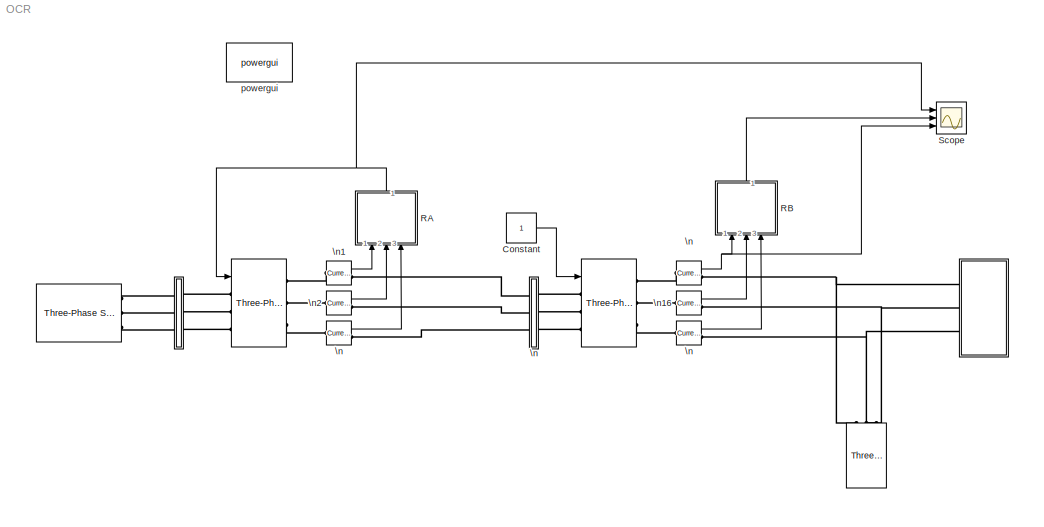
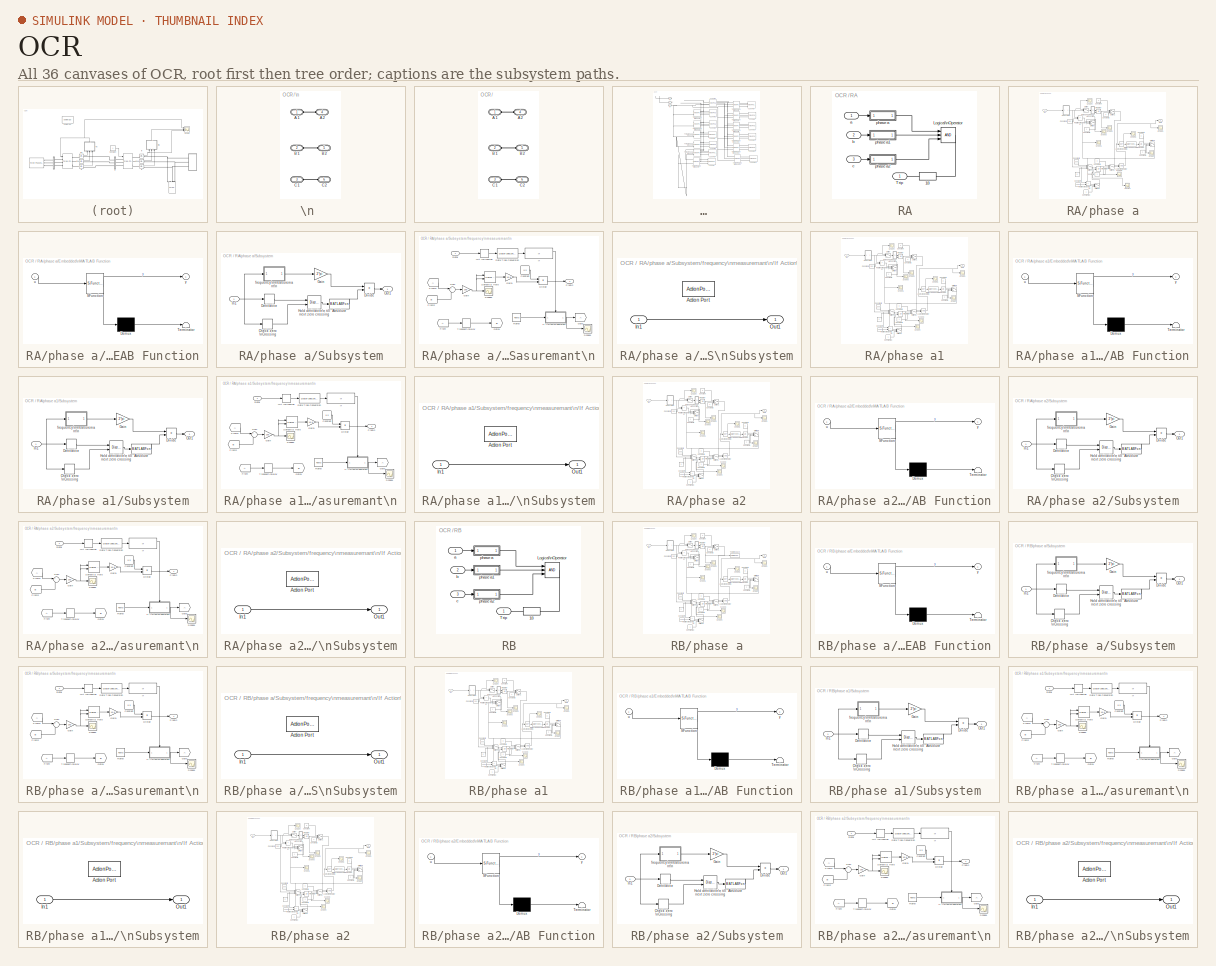
[diagram: thumbnail index - all 36 canvases of the model, root first then tree order]
MODEL OCR
KIND model
BLOCK [Reference]    REF=powerlib/Elements/Three-Phase Breaker
  BreakerResistance = 0.001
  External = on
  FunctionWithSeparateData = off
  InitialState = closed
  Measurements = None
  Ports = [1, 0, 0, 0, 0, 3, 3]
  RTWMemSecDataConstants = Inherit from model
  RTWMemSecDataInternal = Inherit from model
  RTWMemSecDataParameters = Inherit from model
  RTWMemSecFuncExecute = Inherit from model
  RTWMemSecFuncInitTerm = Inherit from model
  SID = 664
  ShowPortLabels = FromPortIcon
  SnubberCapacitance = inf
  SnubberResistance = 1e6
  SourceBlock = powerlib/Elements/Three-Phase Breaker
  SourceProductBaseCode = PS
  SourceProductName = Simscape Electrical
  SourceType = Three-Phase Breaker
  SwitchA = on
  SwitchB = on
  SwitchC = on
  SwitchTimes = 1000000000
  SystemSampleTime = -1
BLOCK [Reference]         REF=powerlib/Elements/Three-Phase Breaker
  BreakerResistance = 0.001
  External = on
  FunctionWithSeparateData = off
  InitialState = closed
  Measurements = None
  Ports = [1, 0, 0, 0, 0, 3, 3]
  RTWMemSecDataConstants = Inherit from model
  RTWMemSecDataInternal = Inherit from model
  RTWMemSecDataParameters = Inherit from model
  RTWMemSecFuncExecute = Inherit from model
  RTWMemSecFuncInitTerm = Inherit from model
  SID = 869
  ShowPortLabels = FromPortIcon
  SnubberCapacitance = inf
  SnubberResistance = 1e6
  SourceBlock = powerlib/Elements/Three-Phase Breaker
  SourceProductBaseCode = PS
  SourceProductName = Simscape Electrical
  SourceType = Three-Phase Breaker
  SwitchA = on
  SwitchB = on
  SwitchC = on
  SwitchTimes = 1000000000
  SystemSampleTime = -1
BLOCK [SubSystem]        
  Ports = [0, 0, 0, 0, 0, 3, 3]
  RequestExecContextInheritance = off
  SID = 1254
BLOCK [Reference]                  REF=powerlib/Elements/Three-Phase Fault
  External = off
  FaultA = on
  FaultB = on
  FaultC = on
  FaultResistance = 0.6
  FunctionWithSeparateData = off
  GroundFault = on
  GroundResistance = 1000000
  InitialStates = [0 0 1]
  Measurements = None
  Ports = [0, 0, 0, 0, 0, 3]
  RTWMemSecDataConstants = Inherit from model
  RTWMemSecDataInternal = Inherit from model
  RTWMemSecDataParameters = Inherit from model
  RTWMemSecFuncExecute = Inherit from model
  RTWMemSecFuncInitTerm = Inherit from model
  SID = 50
  ShowPortLabels = FromPortIcon
  SnubberCapacitance = inf
  SnubberResistance = 1e6
  SourceBlock = powerlib/Elements/Three-Phase Fault
  SourceProductBaseCode = PS
  SourceProductName = Simscape Electrical
  SourceType = Three-Phase Fault
  SwitchStatus = [1]
  SwitchTimes = [ 6]
  SystemSampleTime = -1
BLOCK [SubSystem]                             
  Ports = [0, 0, 0, 0, 0, 3]
  RequestExecContextInheritance = off
  SID = 13
BLOCK [Reference]                                              REF=powerlib/Electrical\nSources/Three-Phase Source
  BaseVoltage = 400
  Frequency = 50
  FunctionWithSeparateData = off
  Inductance = 25^2/1000/377
  InternalConnection = Yg
  PhaseAngle = 0
  Ports = [0, 0, 0, 0, 0, 0, 3]
  RTWMemSecDataConstants = Inherit from model
  RTWMemSecDataInternal = Inherit from model
  RTWMemSecDataParameters = Inherit from model
  RTWMemSecFuncExecute = Inherit from model
  RTWMemSecFuncInitTerm = Inherit from model
  Resistance = 25^2/1000/10
  SID = 1244
  ShortCircuitLevel = 1020e6
  ShowPortLabels = FromPortIcon
  SourceBlock = powerlib/Electrical\nSources/Three-Phase Source
  SourceProductBaseCode = PS
  SourceProductName = Simscape Electrical
  SourceType = Three-Phase Source
  SpecifyImpedance = on
  SystemSampleTime = -1
  Voltage = 400
  XRratio = 10
BLOCK [PMIOPort]                             / R
  SID = 27
  Side = Left
BLOCK [Reference]                             /110 kw1  REF=powerlib/Elements/Three-Phase\nParallel RLC Load
  ActivePower = 110e3/4
  AttributesFormatString = \\n
  CapacitivePower = 0
  Configuration = Y (grounded)
  InductivePower = 58e3/4
  LConnTagsString = A|B|C
  LeftPortType = p1
  Measurements = None
  NominalFrequency = 50
  NominalVoltage = 400
  PhysicalDomain = powersysdomain
  Ports = [0, 0, 0, 0, 0, 3]
  RightPortType = p1
  SID = 14
  SourceBlock = powerlib/Elements/Three-Phase\nParallel RLC Load
  SourceProductBaseCode = PS
  SourceProductName = Simscape Electrical
  SourceType = Three-Phase Parallel RLC Load
  SubClassName = unknown
BLOCK [Reference]                             /110 kw10  REF=powerlib/Elements/Three-Phase\nParallel RLC Load
  ActivePower = 110e3/4
  AttributesFormatString = \\n
  CapacitivePower = 0
  Configuration = Y (grounded)
  InductivePower = 58e3/4
  LConnTagsString = A|B|C
  LeftPortType = p1
  Measurements = None
  NominalFrequency = 50
  NominalVoltage = 400
  PhysicalDomain = powersysdomain
  Ports = [0, 0, 0, 0, 0, 3]
  RightPortType = p1
  SID = 343
  SourceBlock = powerlib/Elements/Three-Phase\nParallel RLC Load
  SourceProductBaseCode = PS
  SourceProductName = Simscape Electrical
  SourceType = Three-Phase Parallel RLC Load
  SubClassName = unknown
BLOCK [Reference]                             /110 kw11  REF=powerlib/Elements/Three-Phase\nParallel RLC Load
  ActivePower = 110e3/4
  AttributesFormatString = \\n
  CapacitivePower = 0
  Configuration = Y (grounded)
  InductivePower = 58e3/4
  LConnTagsString = A|B|C
  LeftPortType = p1
  Measurements = None
  NominalFrequency = 50
  NominalVoltage = 400
  PhysicalDomain = powersysdomain
  Ports = [0, 0, 0, 0, 0, 3]
  RightPortType = p1
  SID = 345
  SourceBlock = powerlib/Elements/Three-Phase\nParallel RLC Load
  SourceProductBaseCode = PS
  SourceProductName = Simscape Electrical
  SourceType = Three-Phase Parallel RLC Load
  SubClassName = unknown
BLOCK [Reference]                             /110 kw12  REF=powerlib/Elements/Three-Phase\nParallel RLC Load
  ActivePower = 110e3/4
  AttributesFormatString = \\n
  CapacitivePower = 0
  Configuration = Y (grounded)
  InductivePower = 58e3/4
  LConnTagsString = A|B|C
  LeftPortType = p1
  Measurements = None
  NominalFrequency = 50
  NominalVoltage = 400
  PhysicalDomain = powersysdomain
  Ports = [0, 0, 0, 0, 0, 3]
  RightPortType = p1
  SID = 347
  SourceBlock = powerlib/Elements/Three-Phase\nParallel RLC Load
  SourceProductBaseCode = PS
  SourceProductName = Simscape Electrical
  SourceType = Three-Phase Parallel RLC Load
  SubClassName = unknown
BLOCK [Reference]                             /110 kw13  REF=powerlib/Elements/Three-Phase\nParallel RLC Load
  ActivePower = 110e3/4
  AttributesFormatString = \\n
  CapacitivePower = 0
  Configuration = Y (grounded)
  InductivePower = 58e3/4
  LConnTagsString = A|B|C
  LeftPortType = p1
  Measurements = None
  NominalFrequency = 50
  NominalVoltage = 400
  PhysicalDomain = powersysdomain
  Ports = [0, 0, 0, 0, 0, 3]
  RightPortType = p1
  SID = 349
  SourceBlock = powerlib/Elements/Three-Phase\nParallel RLC Load
  SourceProductBaseCode = PS
  SourceProductName = Simscape Electrical
  SourceType = Three-Phase Parallel RLC Load
  SubClassName = unknown
BLOCK [Reference]                             /110 kw2  REF=powerlib/Elements/Three-Phase\nParallel RLC Load
  ActivePower = 110e3
  AttributesFormatString = \\n
  CapacitivePower = 0
  Configuration = Y (grounded)
  InductivePower = 58e3
  LConnTagsString = A|B|C
  LeftPortType = p1
  Measurements = None
  NominalFrequency = 50
  NominalVoltage = 400
  PhysicalDomain = powersysdomain
  Ports = [0, 0, 0, 0, 0, 3]
  RightPortType = p1
  SID = 15
  SourceBlock = powerlib/Elements/Three-Phase\nParallel RLC Load
  SourceProductBaseCode = PS
  SourceProductName = Simscape Electrical
  SourceType = Three-Phase Parallel RLC Load
  SubClassName = unknown
BLOCK [Reference]                             /110 kw3  REF=powerlib/Elements/Three-Phase\nParallel RLC Load
  ActivePower = 110e3/4
  AttributesFormatString = \\n
  CapacitivePower = 0
  Configuration = Y (grounded)
  InductivePower = 58e3/4
  LConnTagsString = A|B|C
  LeftPortType = p1
  Measurements = None
  NominalFrequency = 50
  NominalVoltage = 400
  PhysicalDomain = powersysdomain
  Ports = [0, 0, 0, 0, 0, 3]
  RightPortType = p1
  SID = 330
  SourceBlock = powerlib/Elements/Three-Phase\nParallel RLC Load
  SourceProductBaseCode = PS
  SourceProductName = Simscape Electrical
  SourceType = Three-Phase Parallel RLC Load
  SubClassName = unknown
BLOCK [Reference]                             /110 kw4  REF=powerlib/Elements/Three-Phase\nParallel RLC Load
  ActivePower = 110e3/4
  AttributesFormatString = \\n
  CapacitivePower = 0
  Configuration = Y (grounded)
  InductivePower = 58e3/4
  LConnTagsString = A|B|C
  LeftPortType = p1
  Measurements = None
  NominalFrequency = 50
  NominalVoltage = 400
  PhysicalDomain = powersysdomain
  Ports = [0, 0, 0, 0, 0, 3]
  RightPortType = p1
  SID = 331
  SourceBlock = powerlib/Elements/Three-Phase\nParallel RLC Load
  SourceProductBaseCode = PS
  SourceProductName = Simscape Electrical
  SourceType = Three-Phase Parallel RLC Load
  SubClassName = unknown
BLOCK [Reference]                             /110 kw5  REF=powerlib/Elements/Three-Phase\nParallel RLC Load
  ActivePower = 110e3/4
  AttributesFormatString = \\n
  CapacitivePower = 0
  Configuration = Y (grounded)
  InductivePower = 58e3/4
  LConnTagsString = A|B|C
  LeftPortType = p1
  Measurements = None
  NominalFrequency = 50
  NominalVoltage = 400
  PhysicalDomain = powersysdomain
  Ports = [0, 0, 0, 0, 0, 3]
  RightPortType = p1
  SID = 332
  SourceBlock = powerlib/Elements/Three-Phase\nParallel RLC Load
  SourceProductBaseCode = PS
  SourceProductName = Simscape Electrical
  SourceType = Three-Phase Parallel RLC Load
  SubClassName = unknown
BLOCK [Reference]                             /110 kw6  REF=powerlib/Elements/Three-Phase\nParallel RLC Load
  ActivePower = 110e3/4
  AttributesFormatString = \\n
  CapacitivePower = 0
  Configuration = Y (grounded)
  InductivePower = 58e3/4
  LConnTagsString = A|B|C
  LeftPortType = p1
  Measurements = None
  NominalFrequency = 50
  NominalVoltage = 400
  PhysicalDomain = powersysdomain
  Ports = [0, 0, 0, 0, 0, 3]
  RightPortType = p1
  SID = 333
  SourceBlock = powerlib/Elements/Three-Phase\nParallel RLC Load
  SourceProductBaseCode = PS
  SourceProductName = Simscape Electrical
  SourceType = Three-Phase Parallel RLC Load
  SubClassName = unknown
BLOCK [Reference]                             /110 kw7  REF=powerlib/Elements/Three-Phase\nParallel RLC Load
  ActivePower = 110e3/4
  AttributesFormatString = \\n
  CapacitivePower = 0
  Configuration = Y (grounded)
  InductivePower = 58e3/4
  LConnTagsString = A|B|C
  LeftPortType = p1
  Measurements = None
  NominalFrequency = 50
  NominalVoltage = 400
  PhysicalDomain = powersysdomain
  Ports = [0, 0, 0, 0, 0, 3]
  RightPortType = p1
  SID = 334
  SourceBlock = powerlib/Elements/Three-Phase\nParallel RLC Load
  SourceProductBaseCode = PS
  SourceProductName = Simscape Electrical
  SourceType = Three-Phase Parallel RLC Load
  SubClassName = unknown
BLOCK [Reference]                             /110 kw8  REF=powerlib/Elements/Three-Phase\nParallel RLC Load
  ActivePower = 110e3/4
  AttributesFormatString = \\n
  CapacitivePower = 0
  Configuration = Y (grounded)
  InductivePower = 58e3/4
  LConnTagsString = A|B|C
  LeftPortType = p1
  Measurements = None
  NominalFrequency = 50
  NominalVoltage = 400
  PhysicalDomain = powersysdomain
  Ports = [0, 0, 0, 0, 0, 3]
  RightPortType = p1
  SID = 339
  SourceBlock = powerlib/Elements/Three-Phase\nParallel RLC Load
  SourceProductBaseCode = PS
  SourceProductName = Simscape Electrical
  SourceType = Three-Phase Parallel RLC Load
  SubClassName = unknown
BLOCK [Reference]                             /110 kw9  REF=powerlib/Elements/Three-Phase\nParallel RLC Load
  ActivePower = 110e3/4
  AttributesFormatString = \\n
  CapacitivePower = 0
  Configuration = Y (grounded)
  InductivePower = 58e3/4
  LConnTagsString = A|B|C
  LeftPortType = p1
  Measurements = None
  NominalFrequency = 50
  NominalVoltage = 400
  PhysicalDomain = powersysdomain
  Ports = [0, 0, 0, 0, 0, 3]
  RightPortType = p1
  SID = 341
  SourceBlock = powerlib/Elements/Three-Phase\nParallel RLC Load
  SourceProductBaseCode = PS
  SourceProductName = Simscape Electrical
  SourceType = Three-Phase Parallel RLC Load
  SubClassName = unknown
BLOCK [PMIOPort]                             /B   
  Port = 3
  SID = 29
  Side = Left
BLOCK [Reference]                             /Three-Phase Breaker1  REF=powerlib/Elements/Three-Phase Breaker
  BreakerResistance = 0.001
  External = off
  FunctionWithSeparateData = off
  InitialState = closed
  Measurements = None
  Ports = [0, 0, 0, 0, 0, 3, 3]
  RTWMemSecDataConstants = Inherit from model
  RTWMemSecDataInternal = Inherit from model
  RTWMemSecDataParameters = Inherit from model
  RTWMemSecFuncExecute = Inherit from model
  RTWMemSecFuncInitTerm = Inherit from model
  SID = 21
  ShowPortLabels = FromPortIcon
  SnubberCapacitance = inf
  SnubberResistance = 1e6
  SourceBlock = powerlib/Elements/Three-Phase Breaker
  SourceProductBaseCode = PS
  SourceProductName = Simscape Electrical
  SourceType = Three-Phase Breaker
  SwitchA = on
  SwitchB = on
  SwitchC = on
  SwitchTimes = 1.25
  SystemSampleTime = -1
BLOCK [Reference]                             /Three-Phase Breaker10  REF=powerlib/Elements/Three-Phase Breaker
  BreakerResistance = 0.001
  External = off
  FunctionWithSeparateData = off
  InitialState = closed
  Measurements = None
  Ports = [0, 0, 0, 0, 0, 3, 3]
  RTWMemSecDataConstants = Inherit from model
  RTWMemSecDataInternal = Inherit from model
  RTWMemSecDataParameters = Inherit from model
  RTWMemSecFuncExecute = Inherit from model
  RTWMemSecFuncInitTerm = Inherit from model
  SID = 346
  ShowPortLabels = FromPortIcon
  SnubberCapacitance = inf
  SnubberResistance = 1e6
  SourceBlock = powerlib/Elements/Three-Phase Breaker
  SourceProductBaseCode = PS
  SourceProductName = Simscape Electrical
  SourceType = Three-Phase Breaker
  SwitchA = on
  SwitchB = on
  SwitchC = on
  SwitchTimes = 2.25
  SystemSampleTime = -1
BLOCK [Reference]                             /Three-Phase Breaker11  REF=powerlib/Elements/Three-Phase Breaker
  BreakerResistance = 0.001
  External = off
  FunctionWithSeparateData = off
  InitialState = closed
  Measurements = None
  Ports = [0, 0, 0, 0, 0, 3, 3]
  RTWMemSecDataConstants = Inherit from model
  RTWMemSecDataInternal = Inherit from model
  RTWMemSecDataParameters = Inherit from model
  RTWMemSecFuncExecute = Inherit from model
  RTWMemSecFuncInitTerm = Inherit from model
  SID = 348
  ShowPortLabels = FromPortIcon
  SnubberCapacitance = inf
  SnubberResistance = 1e6
  SourceBlock = powerlib/Elements/Three-Phase Breaker
  SourceProductBaseCode = PS
  SourceProductName = Simscape Electrical
  SourceType = Three-Phase Breaker
  SwitchA = on
  SwitchB = on
  SwitchC = on
  SwitchTimes = 2
  SystemSampleTime = -1
BLOCK [Reference]                             /Three-Phase Breaker12  REF=powerlib/Elements/Three-Phase Breaker
  BreakerResistance = 0.001
  External = off
  FunctionWithSeparateData = off
  InitialState = closed
  Measurements = None
  Ports = [0, 0, 0, 0, 0, 3, 3]
  RTWMemSecDataConstants = Inherit from model
  RTWMemSecDataInternal = Inherit from model
  RTWMemSecDataParameters = Inherit from model
  RTWMemSecFuncExecute = Inherit from model
  RTWMemSecFuncInitTerm = Inherit from model
  SID = 350
  ShowPortLabels = FromPortIcon
  SnubberCapacitance = inf
  SnubberResistance = 1e6
  SourceBlock = powerlib/Elements/Three-Phase Breaker
  SourceProductBaseCode = PS
  SourceProductName = Simscape Electrical
  SourceType = Three-Phase Breaker
  SwitchA = on
  SwitchB = on
  SwitchC = on
  SwitchTimes = 1.75
  SystemSampleTime = -1
BLOCK [Reference]                             /Three-Phase Breaker2  REF=powerlib/Elements/Three-Phase Breaker
  BreakerResistance = 0.001
  External = off
  FunctionWithSeparateData = off
  InitialState = closed
  Measurements = None
  Ports = [0, 0, 0, 0, 0, 3, 3]
  RTWMemSecDataConstants = Inherit from model
  RTWMemSecDataInternal = Inherit from model
  RTWMemSecDataParameters = Inherit from model
  RTWMemSecFuncExecute = Inherit from model
  RTWMemSecFuncInitTerm = Inherit from model
  SID = 22
  ShowPortLabels = FromPortIcon
  SnubberCapacitance = inf
  SnubberResistance = 1e6
  SourceBlock = powerlib/Elements/Three-Phase Breaker
  SourceProductBaseCode = PS
  SourceProductName = Simscape Electrical
  SourceType = Three-Phase Breaker
  SwitchA = on
  SwitchB = on
  SwitchC = on
  SwitchTimes = 1
  SystemSampleTime = -1
BLOCK [Reference]                             /Three-Phase Breaker3  REF=powerlib/Elements/Three-Phase Breaker
  BreakerResistance = 0.001
  External = off
  FunctionWithSeparateData = off
  InitialState = closed
  Measurements = None
  Ports = [0, 0, 0, 0, 0, 3, 3]
  RTWMemSecDataConstants = Inherit from model
  RTWMemSecDataInternal = Inherit from model
  RTWMemSecDataParameters = Inherit from model
  RTWMemSecFuncExecute = Inherit from model
  RTWMemSecFuncInitTerm = Inherit from model
  SID = 23
  ShowPortLabels = FromPortIcon
  SnubberCapacitance = inf
  SnubberResistance = 1e6
  SourceBlock = powerlib/Elements/Three-Phase Breaker
  SourceProductBaseCode = PS
  SourceProductName = Simscape Electrical
  SourceType = Three-Phase Breaker
  SwitchA = on
  SwitchB = on
  SwitchC = on
  SwitchTimes = 0.75
  SystemSampleTime = -1
BLOCK [Reference]                             /Three-Phase Breaker4  REF=powerlib/Elements/Three-Phase Breaker
  BreakerResistance = 0.001
  External = off
  FunctionWithSeparateData = off
  InitialState = closed
  Measurements = None
  Ports = [0, 0, 0, 0, 0, 3, 3]
  RTWMemSecDataConstants = Inherit from model
  RTWMemSecDataInternal = Inherit from model
  RTWMemSecDataParameters = Inherit from model
  RTWMemSecFuncExecute = Inherit from model
  RTWMemSecFuncInitTerm = Inherit from model
  SID = 24
  ShowPortLabels = FromPortIcon
  SnubberCapacitance = inf
  SnubberResistance = 1e6
  SourceBlock = powerlib/Elements/Three-Phase Breaker
  SourceProductBaseCode = PS
  SourceProductName = Simscape Electrical
  SourceType = Three-Phase Breaker
  SwitchA = on
  SwitchB = on
  SwitchC = on
  SwitchTimes = 0.25
  SystemSampleTime = -1
BLOCK [Reference]                             /Three-Phase Breaker5  REF=powerlib/Elements/Three-Phase Breaker
  BreakerResistance = 0.001
  External = off
  FunctionWithSeparateData = off
  InitialState = closed
  Measurements = None
  Ports = [0, 0, 0, 0, 0, 3, 3]
  RTWMemSecDataConstants = Inherit from model
  RTWMemSecDataInternal = Inherit from model
  RTWMemSecDataParameters = Inherit from model
  RTWMemSecFuncExecute = Inherit from model
  RTWMemSecFuncInitTerm = Inherit from model
  SID = 25
  ShowPortLabels = FromPortIcon
  SnubberCapacitance = inf
  SnubberResistance = 1e6
  SourceBlock = powerlib/Elements/Three-Phase Breaker
  SourceProductBaseCode = PS
  SourceProductName = Simscape Electrical
  SourceType = Three-Phase Breaker
  SwitchA = on
  SwitchB = on
  SwitchC = on
  SwitchTimes = 0.5
  SystemSampleTime = -1
BLOCK [Reference]                             /Three-Phase Breaker6  REF=powerlib/Elements/Three-Phase Breaker
  BreakerResistance = 0.001
  External = off
  FunctionWithSeparateData = off
  InitialState = closed
  Measurements = None
  Ports = [0, 0, 0, 0, 0, 3, 3]
  RTWMemSecDataConstants = Inherit from model
  RTWMemSecDataInternal = Inherit from model
  RTWMemSecDataParameters = Inherit from model
  RTWMemSecFuncExecute = Inherit from model
  RTWMemSecFuncInitTerm = Inherit from model
  SID = 340
  ShowPortLabels = FromPortIcon
  SnubberCapacitance = inf
  SnubberResistance = 1e6
  SourceBlock = powerlib/Elements/Three-Phase Breaker
  SourceProductBaseCode = PS
  SourceProductName = Simscape Electrical
  SourceType = Three-Phase Breaker
  SwitchA = on
  SwitchB = on
  SwitchC = on
  SwitchTimes = 3
  SystemSampleTime = -1
BLOCK [Reference]                             /Three-Phase Breaker7  REF=powerlib/Elements/Three-Phase Breaker
  BreakerResistance = 0.001
  External = off
  FunctionWithSeparateData = off
  InitialState = closed
  Measurements = None
  Ports = [0, 0, 0, 0, 0, 3, 3]
  RTWMemSecDataConstants = Inherit from model
  RTWMemSecDataInternal = Inherit from model
  RTWMemSecDataParameters = Inherit from model
  RTWMemSecFuncExecute = Inherit from model
  RTWMemSecFuncInitTerm = Inherit from model
  SID = 342
  ShowPortLabels = FromPortIcon
  SnubberCapacitance = inf
  SnubberResistance = 1e6
  SourceBlock = powerlib/Elements/Three-Phase Breaker
  SourceProductBaseCode = PS
  SourceProductName = Simscape Electrical
  SourceType = Three-Phase Breaker
  SwitchA = on
  SwitchB = on
  SwitchC = on
  SwitchTimes = 2.75
  SystemSampleTime = -1
BLOCK [Reference]                             /Three-Phase Breaker8  REF=powerlib/Elements/Three-Phase Breaker
  BreakerResistance = 0.001
  External = off
  FunctionWithSeparateData = off
  InitialState = closed
  Measurements = None
  Ports = [0, 0, 0, 0, 0, 3, 3]
  RTWMemSecDataConstants = Inherit from model
  RTWMemSecDataInternal = Inherit from model
  RTWMemSecDataParameters = Inherit from model
  RTWMemSecFuncExecute = Inherit from model
  RTWMemSecFuncInitTerm = Inherit from model
  SID = 344
  ShowPortLabels = FromPortIcon
  SnubberCapacitance = inf
  SnubberResistance = 1e6
  SourceBlock = powerlib/Elements/Three-Phase Breaker
  SourceProductBaseCode = PS
  SourceProductName = Simscape Electrical
  SourceType = Three-Phase Breaker
  SwitchA = on
  SwitchB = on
  SwitchC = on
  SwitchTimes = 2.5
  SystemSampleTime = -1
BLOCK [Reference]                             /Three-Phase Breaker9  REF=powerlib/Elements/Three-Phase Breaker
  BreakerResistance = 0.001
  External = off
  FunctionWithSeparateData = off
  InitialState = closed
  Measurements = None
  Ports = [0, 0, 0, 0, 0, 3, 3]
  RTWMemSecDataConstants = Inherit from model
  RTWMemSecDataInternal = Inherit from model
  RTWMemSecDataParameters = Inherit from model
  RTWMemSecFuncExecute = Inherit from model
  RTWMemSecFuncInitTerm = Inherit from model
  SID = 26
  ShowPortLabels = FromPortIcon
  SnubberCapacitance = inf
  SnubberResistance = 1e6
  SourceBlock = powerlib/Elements/Three-Phase Breaker
  SourceProductBaseCode = PS
  SourceProductName = Simscape Electrical
  SourceType = Three-Phase Breaker
  SwitchA = on
  SwitchB = on
  SwitchC = on
  SwitchTimes = 1.5
  SystemSampleTime = -1
BLOCK [PMIOPort]                             /Y 
  Port = 2
  SID = 28
  Side = Left
BLOCK [PMIOPort]        /A1
  SID = 1255
  Side = Left
BLOCK [PMIOPort]        /A2
  Port = 4
  SID = 1258
  Side = Right
BLOCK [PMIOPort]        /B1
  Port = 2
  SID = 1256
  Side = Left
BLOCK [PMIOPort]        /B2
  Port = 5
  SID = 1259
  Side = Right
BLOCK [PMIOPort]        /C1
  Port = 3
  SID = 1257
  Side = Left
BLOCK [PMIOPort]        /C2
  Port = 6
  SID = 1260
  Side = Right
BLOCK [SubSystem]  \n  
  Ports = [0, 0, 0, 0, 0, 3, 3]
  RequestExecContextInheritance = off
  SID = 1245
BLOCK [PMIOPort]  \n  /A1
  SID = 1246
  Side = Left
BLOCK [PMIOPort]  \n  /A2
  Port = 4
  SID = 1249
  Side = Right
BLOCK [PMIOPort]  \n  /B1
  Port = 2
  SID = 1247
  Side = Left
BLOCK [PMIOPort]  \n  /B2
  Port = 5
  SID = 1250
  Side = Right
BLOCK [PMIOPort]  \n  /C1
  Port = 3
  SID = 1248
  Side = Left
BLOCK [PMIOPort]  \n  /C2
  Port = 6
  SID = 1251
  Side = Right
BLOCK [Constant] Constant
  SID = 3402
BLOCK [SubSystem] RA
  Ports = [3, 1]
  RequestExecContextInheritance = off
  SID = 2942
BLOCK [DataTypeConversion] RA/ 18
  OutDataTypeStr = double
  RndMeth = Floor
  SID = 2946
  SaturateOnIntegerOverflow = off
BLOCK [Logic] RA/Logical\nOperator
  AllPortsSameDT = off
  Inputs = 3
  OutDataTypeStr = boolean
  Ports = [3, 1]
  SID = 2947
BLOCK [Outport] RA/Trip
  IconDisplay = Port number
  SID = 3171
BLOCK [Inport] RA/a
  IconDisplay = Port number
  SID = 2943
BLOCK [Inport] RA/b
  IconDisplay = Port number
  Port = 2
  SID = 2944
BLOCK [Inport] RA/c
  IconDisplay = Port number
  Port = 3
  SID = 2945
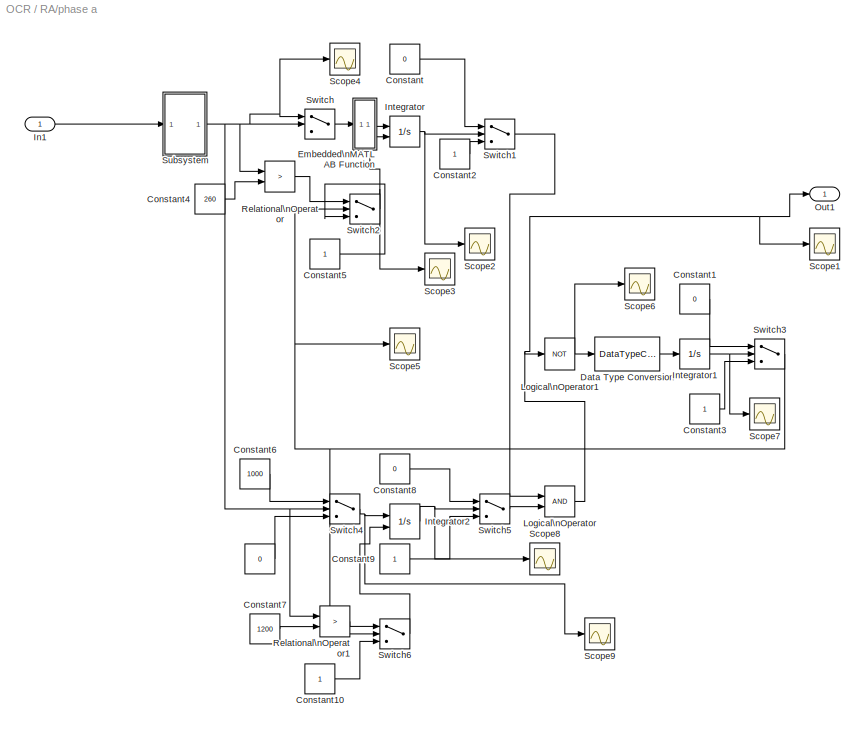
BLOCK [SubSystem] RA/phase a
  Ports = [1, 1]
  RequestExecContextInheritance = off
  SID = 2948
BLOCK [Constant] RA/phase a/ 
  SID = 2950
  Value = 0
BLOCK [Constant] RA/phase a/Constant
  SID = 2951
  Value = 0
BLOCK [Constant] RA/phase a/Constant1
  SID = 2952
  Value = 0
BLOCK [Constant] RA/phase a/Constant10
  SID = 2953
BLOCK [Constant] RA/phase a/Constant2
  SID = 2954
BLOCK [Constant] RA/phase a/Constant3
  SID = 2955
BLOCK [Constant] RA/phase a/Constant4
  SID = 2956
  Value = 260
BLOCK [Constant] RA/phase a/Constant5
  SID = 2957
BLOCK [Constant] RA/phase a/Constant6
  SID = 2958
  Value = 1000
BLOCK [Constant] RA/phase a/Constant7
  SID = 2959
  Value = 1200
BLOCK [Constant] RA/phase a/Constant8
  SID = 2960
  Value = 0
BLOCK [Constant] RA/phase a/Constant9
  SID = 2961
BLOCK [DataTypeConversion] RA/phase a/Data Type Conversion
  RndMeth = Floor
  SID = 2962
  SaturateOnIntegerOverflow = off
BLOCK [SubSystem] RA/phase a/Embedded\nMATLAB Function
  ErrorFcn = Stateflow.Translate.translate
  PermitHierarchicalResolution = ExplicitOnly
  Ports = [1, 1]
  RequestExecContextInheritance = off
  SFBlockType = MATLAB Function
  SID = 2963
  TreatAsAtomicUnit = on
BLOCK [Demux] RA/phase a/Embedded\nMATLAB Function/ Demux 
  Outputs = 1
  Ports = [1, 1]
  SID = 2963::19
BLOCK [S-Function] RA/phase a/Embedded\nMATLAB Function/ SFunction 
  EnableBusSupport = off
  FunctionName = sf_sfun
  PortCounts = [1 2]
  Ports = [1, 2]
  SFcnIsStateOwnerBlock = off
  SFunctionDeploymentMode = off
  SID = 2963::18
  Tag = Stateflow S-Function 3
BLOCK [Terminator] RA/phase a/Embedded\nMATLAB Function/ Terminator 
  SID = 2963::20
BLOCK [Inport] RA/phase a/Embedded\nMATLAB Function/u
  IconDisplay = Port number
  SID = 2963::1
BLOCK [Outport] RA/phase a/Embedded\nMATLAB Function/y
  IconDisplay = Port number
  SID = 2963::5
BLOCK [Inport] RA/phase a/In1
  IconDisplay = Port number
  SID = 2949
BLOCK [Integrator] RA/phase a/Integrator
  ExternalReset = falling
  Ports = [2, 1]
  SID = 2964
BLOCK [Integrator] RA/phase a/Integrator1
  Ports = [1, 1]
  SID = 2965
BLOCK [Integrator] RA/phase a/Integrator2
  ExternalReset = falling
  Ports = [2, 1]
  SID = 2966
BLOCK [Logic] RA/phase a/Logical\nOperator
  AllPortsSameDT = off
  OutDataTypeStr = boolean
  Ports = [2, 1]
  SID = 2967
BLOCK [Logic] RA/phase a/Logical\nOperator1
  AllPortsSameDT = off
  Operator = NOT
  OutDataTypeStr = boolean
  Ports = [1, 1]
  SID = 2968
BLOCK [Outport] RA/phase a/Out1
  IconDisplay = Port number
  SID = 3021
BLOCK [RelationalOperator] RA/phase a/Relational\nOperator
  InputSameDT = off
  Operator = >
  OutDataTypeStr = boolean
  Ports = [2, 1]
  SID = 2969
BLOCK [RelationalOperator] RA/phase a/Relational\nOperator1
  InputSameDT = off
  Operator = >
  OutDataTypeStr = boolean
  Ports = [2, 1]
  SID = 2970
BLOCK [Scope] RA/phase a/Scope1
  Floating = off
  NumInputPorts = 1
  Ports = [1]
  SID = 2971
  ScopeSpecificationString = C++SS(StrPVP('Location','[188, 390, 512, 629]'),StrPVP('Open','off'),MxPVP('AxesTitles',54,'struct(''axes1'',''%<SignalLabel>'')'),StrPVP('YMin','0'),StrPVP('YMax','1'),StrPVP('SaveName','ScopeData3'),StrPVP('DataFormat','StructureWithTime'),StrPVP('BlockParamSampleTime','0'),StrPVP('LimitDataPoints','on'),StrPVP('Decimation','1'),StrPVP('BlockParamSampleInput','off'))  <repeated x6 — deduplicated; at blocks: Scope1>
BLOCK [Scope] RA/phase a/Scope2
  Floating = off
  NumInputPorts = 1
  Ports = [1]
  SID = 2972
  ScopeSpecificationString = C++SS(StrPVP('Location','[113, 456, 437, 695]'),StrPVP('Open','off'),MxPVP('AxesTitles',54,'struct(''axes1'',''%<SignalLabel>'')'),StrPVP('TimeRange','15              '),StrPVP('YMin','7401.61'),StrPVP('YMax','7401.61'),StrPVP('SaveName','ScopeData5'),StrPVP('DataFormat','StructureWithTime'),StrPVP('BlockParamSampleTime','0'),StrPVP('LimitDataPoints','on'),StrPVP('Decimation','1'),StrPVP('BlockPar...<+22ch>  <repeated x5 — deduplicated; at blocks: Scope2>
BLOCK [Scope] RA/phase a/Scope3
  Floating = off
  NumInputPorts = 1
  Ports = [1]
  SID = 2973
  ScopeSpecificationString = C++SS(StrPVP('Location','[188, 390, 512, 629]'),StrPVP('Open','off'),MxPVP('AxesTitles',54,'struct(''axes1'',''%<SignalLabel>'')'),StrPVP('YMin','-1'),StrPVP('YMax','1'),StrPVP('SaveName','ScopeData8'),StrPVP('DataFormat','StructureWithTime'),StrPVP('BlockParamSampleTime','0'),StrPVP('LimitDataPoints','on'),StrPVP('Decimation','1'),StrPVP('BlockParamSampleInput','off'))  <repeated x6 — deduplicated; at blocks: Scope3>
BLOCK [Scope] RA/phase a/Scope4
  Floating = off
  NumInputPorts = 1
  Ports = [1]
  SID = 2974
  ScopeSpecificationString = C++SS(StrPVP('Location','[120, 415, 444, 654]'),StrPVP('Open','off'),MxPVP('AxesTitles',54,'struct(''axes1'',''%<SignalLabel>'')'),StrPVP('YMin','630'),StrPVP('YMax','760'),StrPVP('SaveName','ScopeData1'),StrPVP('DataFormat','StructureWithTime'),StrPVP('BlockParamSampleTime','0'),StrPVP('LimitDataPoints','on'),StrPVP('Decimation','1'),StrPVP('BlockParamSampleInput','off'))  <repeated x6 — deduplicated; at blocks: Scope4>
BLOCK [Scope] RA/phase a/Scope5
  Floating = off
  NumInputPorts = 1
  Ports = [1]
  SID = 2975
  ScopeSpecificationString = C++SS(StrPVP('Location','[235, 412, 559, 651]'),StrPVP('Open','off'),MxPVP('AxesTitles',54,'struct(''axes1'',''%<SignalLabel>'')'),StrPVP('YMin','1'),StrPVP('YMax','1'),StrPVP('SaveName','ScopeData4'),StrPVP('DataFormat','StructureWithTime'),StrPVP('BlockParamSampleTime','0'),StrPVP('LimitDataPoints','on'),StrPVP('Decimation','1'),StrPVP('BlockParamSampleInput','off'))  <repeated x6 — deduplicated; at blocks: Scope5>
BLOCK [Scope] RA/phase a/Scope6
  Floating = off
  NumInputPorts = 1
  Ports = [1]
  SID = 2976
  ScopeSpecificationString = C++SS(StrPVP('Location','[189, 522, 513, 761]'),StrPVP('Open','off'),MxPVP('AxesTitles',54,'struct(''axes1'',''%<SignalLabel>'')'),StrPVP('YMin','0'),StrPVP('YMax','1'),StrPVP('SaveName','ScopeData6'),StrPVP('DataFormat','StructureWithTime'),StrPVP('BlockParamSampleTime','0'),StrPVP('LimitDataPoints','on'),StrPVP('Decimation','1'),StrPVP('BlockParamSampleInput','off'))  <repeated x6 — deduplicated; at blocks: Scope6>
BLOCK [Scope] RA/phase a/Scope7
  Floating = off
  NumInputPorts = 1
  Ports = [1]
  SID = 2977
  ScopeSpecificationString = C++SS(StrPVP('Location','[188, 390, 512, 629]'),StrPVP('Open','off'),MxPVP('AxesTitles',54,'struct(''axes1'',''%<SignalLabel>'')'),StrPVP('TimeRange','50'),StrPVP('YMin','-1'),StrPVP('YMax','1'),StrPVP('SaveName','ScopeData7'),StrPVP('DataFormat','StructureWithTime'),StrPVP('BlockParamSampleTime','0'),StrPVP('LimitDataPoints','on'),StrPVP('Decimation','1'),StrPVP('BlockParamSampleInput','off'))  <repeated x6 — deduplicated; at blocks: Scope7>
BLOCK [Scope] RA/phase a/Scope8
  Floating = off
  NumInputPorts = 1
  Ports = [1]
  SID = 2978
  ScopeSpecificationString = C++SS(StrPVP('Location','[188, 390, 512, 629]'),StrPVP('Open','off'),MxPVP('AxesTitles',54,'struct(''axes1'',''%<SignalLabel>'')'),StrPVP('TimeRange','10              '),StrPVP('YMin','-1'),StrPVP('YMax','1'),StrPVP('DataFormat','StructureWithTime'),StrPVP('BlockParamSampleTime','0'),StrPVP('LimitDataPoints','on'),StrPVP('Decimation','1'),StrPVP('BlockParamSampleInput','off'))  <repeated x6 — deduplicated; at blocks: Scope8>
BLOCK [Scope] RA/phase a/Scope9
  Floating = off
  NumInputPorts = 1
  Ports = [1]
  SID = 2979
  ScopeSpecificationString = C++SS(StrPVP('Location','[1, 52, 1025, 733]'),StrPVP('Open','off'),MxPVP('AxesTitles',54,'struct(''axes1'',''%<SignalLabel>'')'),StrPVP('TimeRange','10              '),StrPVP('YMin','-1'),StrPVP('YMax','1'),StrPVP('SaveName','ScopeData9'),StrPVP('DataFormat','StructureWithTime'),StrPVP('BlockParamSampleTime','0'),StrPVP('LimitDataPoints','on'),StrPVP('Decimation','1'),StrPVP('BlockParamSampleInput...<+9ch>  <repeated x6 — deduplicated; at blocks: Scope9>
BLOCK [SubSystem] RA/phase a/Subsystem
  Ports = [1, 1]
  RequestExecContextInheritance = off
  SID = 2980
BLOCK [MATLABFcn] RA/phase a/Subsystem/Absolute
  MATLABFcn = abs
  Ports = [1, 1]
  SID = 2982
BLOCK [HitCross] RA/phase a/Subsystem/Check zero \nCrossing
  Ports = [1, 1]
  SID = 2983
BLOCK [Derivative] RA/phase a/Subsystem/Derivative
  SID = 2984
BLOCK [Product] RA/phase a/Subsystem/Divide
  InputSameDT = off
  Inputs = /*
  OutDataTypeStr = Inherit: Inherit via internal rule
  Ports = [2, 1]
  RndMeth = Floor
  SID = 2985
  SaturateOnIntegerOverflow = off
BLOCK [Gain] RA/phase a/Subsystem/Gain
  Gain = 2*pi
  OutDataTypeStr = Inherit: Inherit via internal rule
  ParamDataTypeStr = Inherit: Inherit via internal rule
  SID = 2986
  SaturateOnIntegerOverflow = off
BLOCK [Reference] RA/phase a/Subsystem/Hold derivative\n till next zero crossing  REF=powerlib_extras/Discrete \nControl Blocks/Discrete\nSample & Hold
  FunctionWithSeparateData = off
  Ports = [2, 1]
  RTWMemSecDataConstants = Inherit from model
  RTWMemSecDataInternal = Inherit from model
  RTWMemSecDataParameters = Inherit from model
  RTWMemSecFuncExecute = Inherit from model
  RTWMemSecFuncInitTerm = Inherit from model
  SID = 2987
  ShowPortLabels = FromPortIcon
  SourceBlock = powerlib_extras/Discrete \nControl Blocks/Discrete\nSample & Hold
  SourceProductBaseCode = PS
  SourceProductName = Simscape Electrical
  SourceType = Discrete Sample & Hold
  SystemSampleTime = -1
  Ts = -1
  ic = 0
BLOCK [Inport] RA/phase a/Subsystem/In1
  IconDisplay = Port number
  SID = 2981
BLOCK [Outport] RA/phase a/Subsystem/Out1
  IconDisplay = Port number
  SID = 3013
BLOCK [SubSystem] RA/phase a/Subsystem/frequency\nmeasuremant\n
  Ports = [1, 1]
  RequestExecContextInheritance = off
  SID = 2988
BLOCK [Constant] RA/phase a/Subsystem/frequency\nmeasuremant\n/Constant
  SID = 2990
  Value = 0.5
BLOCK [DataTypeConversion] RA/phase a/Subsystem/frequency\nmeasuremant\n/Data Type Conversion
  OutDataTypeStr = double
  RndMeth = Floor
  SID = 2991
  SaturateOnIntegerOverflow = off
BLOCK [Product] RA/phase a/Subsystem/frequency\nmeasuremant\n/Divide
  InputSameDT = off
  Inputs = */
  OutDataTypeStr = Inherit: Inherit via internal rule
  Ports = [2, 1]
  RndMeth = Floor
  SID = 2992
  SaturateOnIntegerOverflow = off
BLOCK [Outport] RA/phase a/Subsystem/frequency\nmeasuremant\n/Freq\n
  IconDisplay = Port number
  SID = 3012
BLOCK [From] RA/phase a/Subsystem/frequency\nmeasuremant\n/From
  CloseFcn = tagdialog Close
  SID = 2993
BLOCK [From] RA/phase a/Subsystem/frequency\nmeasuremant\n/From2
  CloseFcn = tagdialog Close
  GotoTag = B
  SID = 2994
BLOCK [From] RA/phase a/Subsystem/frequency\nmeasuremant\n/From3
  CloseFcn = tagdialog Close
  SID = 2995
BLOCK [Gain] RA/phase a/Subsystem/frequency\nmeasuremant\n/Gain
  Gain = 1e8
  OutDataTypeStr = Inherit: Inherit via internal rule
  ParamDataTypeStr = Inherit: Inherit via internal rule
  SID = 2996
  SaturateOnIntegerOverflow = off
BLOCK [Gain] RA/phase a/Subsystem/frequency\nmeasuremant\n/Gain1
  Gain = 1e-8
  OutDataTypeStr = Inherit: Inherit via internal rule
  ParamDataTypeStr = Inherit: Inherit via internal rule
  SID = 2997
  SaturateOnIntegerOverflow = off
BLOCK [Goto] RA/phase a/Subsystem/frequency\nmeasuremant\n/Goto
  SID = 2998
BLOCK [Goto] RA/phase a/Subsystem/frequency\nmeasuremant\n/Goto1
  GotoTag = B
  SID = 2999
BLOCK [HitCross] RA/phase a/Subsystem/frequency\nmeasuremant\n/Hit \nCrossing
  Ports = [1, 1]
  SID = 3000
BLOCK [If] RA/phase a/Subsystem/frequency\nmeasuremant\n/If
  Ports = [1, 2]
  SID = 3001
BLOCK [SubSystem] RA/phase a/Subsystem/frequency\nmeasuremant\n/If Action\nSubsystem
  Ports = [1, 1, 0, 0, 0, 0, 0, 1]
  RequestExecContextInheritance = off
  SID = 3002
  TreatAsAtomicUnit = on
BLOCK [ActionPort] RA/phase a/Subsystem/frequency\nmeasuremant\n/If Action\nSubsystem/Action Port
  ActionPortLabel = if { }
  SID = 3004
BLOCK [Inport] RA/phase a/Subsystem/frequency\nmeasuremant\n/If Action\nSubsystem/In1
  IconDisplay = Port number
  SID = 3003
BLOCK [Outport] RA/phase a/Subsystem/frequency\nmeasuremant\n/If Action\nSubsystem/Out1
  IconDisplay = Port number
  SID = 3005
BLOCK [Reference] RA/phase a/Subsystem/frequency\nmeasuremant\n/Ramp  REF=simulink/Sources/Ramp
  FunctionWithSeparateData = off
  Ports = [0, 1]
  RTWMemSecDataConstants = Inherit from model
  RTWMemSecDataInternal = Inherit from model
  RTWMemSecDataParameters = Inherit from model
  RTWMemSecFuncExecute = Inherit from model
  RTWMemSecFuncInitTerm = Inherit from model
  SID = 3006
  ShowPortLabels = FromPortIcon
  SourceBlock = simulink/Sources/Ramp
  SourceProductBaseCode = SL
  SourceProductName = Simulink
  SourceType = Ramp
  SystemSampleTime = -1
  VectorParams1D = on
  X0 = 0
  slope = 1
  start = 0
BLOCK [Reference] RA/phase a/Subsystem/frequency\nmeasuremant\n/Sample & Hold  REF=powerlib_extras/Control \nBlocks/Sample & Hold
  FunctionWithSeparateData = off
  Ports = [2, 1]
  RTWMemSecDataConstants = Inherit from model
  RTWMemSecDataInternal = Inherit from model
  RTWMemSecDataParameters = Inherit from model
  RTWMemSecFuncExecute = Inherit from model
  RTWMemSecFuncInitTerm = Inherit from model
  SID = 3007
  ShowPortLabels = FromPortIcon
  SourceBlock = powerlib_extras/Control \nBlocks/Sample & Hold
  SourceProductBaseCode = PS
  SourceProductName = Simscape Electrical
  SourceType = Sample & Hold
  SystemSampleTime = -1
  ic = 0
BLOCK [Scope] RA/phase a/Subsystem/frequency\nmeasuremant\n/Scope1
  Floating = off
  NumInputPorts = 1
  Ports = [1]
  SID = 3008
  ScopeSpecificationString = C++SS(StrPVP('Location','[188, 390, 512, 629]'),StrPVP('Open','off'),MxPVP('AxesTitles',54,'struct(''axes1'',''%<SignalLabel>'')'),StrPVP('SaveName','ScopeData1'),StrPVP('DataFormat','StructureWithTime'),StrPVP('BlockParamSampleTime','0'),StrPVP('LimitDataPoints','on'),StrPVP('Decimation','1'),StrPVP('BlockParamSampleInput','off'))  <repeated x6 — deduplicated; at blocks: Scope1>
BLOCK [Scope] RA/phase a/Subsystem/frequency\nmeasuremant\n/Scope2
  Floating = off
  NumInputPorts = 1
  Ports = [1]
  SID = 3009
  ScopeSpecificationString = C++SS(StrPVP('Location','[188, 390, 512, 629]'),StrPVP('Open','off'),MxPVP('AxesTitles',54,'struct(''axes1'',''%<SignalLabel>'')'),StrPVP('YMin','-1'),StrPVP('YMax','1'),StrPVP('SaveName','ScopeData2'),StrPVP('DataFormat','StructureWithTime'),StrPVP('BlockParamSampleTime','0'),StrPVP('LimitDataPoints','on'),StrPVP('Decimation','1'),StrPVP('BlockParamSampleInput','off'))  <repeated x6 — deduplicated; at blocks: Scope2>
BLOCK [Sum] RA/phase a/Subsystem/frequency\nmeasuremant\n/Sum
  IconShape = round
  InputSameDT = off
  Inputs = +-
  OutDataTypeStr = Inherit: Inherit via internal rule
  Ports = [2, 1]
  SID = 3010
  SaturateOnIntegerOverflow = off
BLOCK [TransportDelay] RA/phase a/Subsystem/frequency\nmeasuremant\n/Transport\nDelay
  DelayTime = 0.0000000000000000000000001
  Ports = [1, 1]
  SID = 3011
BLOCK [Inport] RA/phase a/Subsystem/frequency\nmeasuremant\n/signal
  IconDisplay = Port number
  SID = 2989
BLOCK [Switch] RA/phase a/Switch
  Criteria = u2 > Threshold
  InputSameDT = off
  SID = 3014
  SaturateOnIntegerOverflow = off
  Threshold = 260
BLOCK [Switch] RA/phase a/Switch1
  Criteria = u2 > Threshold
  InputSameDT = off
  SID = 3015
  SaturateOnIntegerOverflow = off
  Threshold = 1400
  ZeroCross = off
BLOCK [Switch] RA/phase a/Switch2
  Criteria = u2 > Threshold
  InputSameDT = off
  SID = 3016
  SaturateOnIntegerOverflow = off
  Threshold = 0.5
BLOCK [Switch] RA/phase a/Switch3
  Criteria = u2 > Threshold
  InputSameDT = off
  SID = 3017
  SaturateOnIntegerOverflow = off
  Threshold = 0.000001
BLOCK [Switch] RA/phase a/Switch4
  Criteria = u2 > Threshold
  InputSameDT = off
  SID = 3018
  SaturateOnIntegerOverflow = off
  Threshold = 1200
BLOCK [Switch] RA/phase a/Switch5
  Criteria = u2 > Threshold
  InputSameDT = off
  SID = 3019
  SaturateOnIntegerOverflow = off
  Threshold = 200
  ZeroCross = off
BLOCK [Switch] RA/phase a/Switch6
  Criteria = u2 > Threshold
  InputSameDT = off
  SID = 3020
  SaturateOnIntegerOverflow = off
  Threshold = 0.5
BLOCK [SubSystem] RA/phase a1
  Ports = [1, 1]
  RequestExecContextInheritance = off
  SID = 3022
BLOCK [Constant] RA/phase a1/ 
  SID = 3024
  Value = 0
BLOCK [Constant] RA/phase a1/Constant
  SID = 3025
  Value = 0
BLOCK [Constant] RA/phase a1/Constant1
  SID = 3026
  Value = 0
BLOCK [Constant] RA/phase a1/Constant10
  SID = 3027
BLOCK [Constant] RA/phase a1/Constant2
  SID = 3028
BLOCK [Constant] RA/phase a1/Constant3
  SID = 3029
BLOCK [Constant] RA/phase a1/Constant4
  SID = 3030
  Value = 260
BLOCK [Constant] RA/phase a1/Constant5
  SID = 3031
BLOCK [Constant] RA/phase a1/Constant6
  SID = 3032
  Value = 1000
BLOCK [Constant] RA/phase a1/Constant7
  SID = 3033
  Value = 1200
BLOCK [Constant] RA/phase a1/Constant8
  SID = 3034
  Value = 0
BLOCK [Constant] RA/phase a1/Constant9
  SID = 3035
BLOCK [DataTypeConversion] RA/phase a1/Data Type Conversion
  RndMeth = Floor
  SID = 3036
  SaturateOnIntegerOverflow = off
BLOCK [SubSystem] RA/phase a1/Embedded\nMATLAB Function
  ErrorFcn = Stateflow.Translate.translate
  PermitHierarchicalResolution = ExplicitOnly
  Ports = [1, 1]
  RequestExecContextInheritance = off
  SFBlockType = MATLAB Function
  SID = 3037
  TreatAsAtomicUnit = on
BLOCK [Demux] RA/phase a1/Embedded\nMATLAB Function/ Demux 
  Outputs = 1
  Ports = [1, 1]
  SID = 3037::19
BLOCK [S-Function] RA/phase a1/Embedded\nMATLAB Function/ SFunction 
  EnableBusSupport = off
  FunctionName = sf_sfun
  PortCounts = [1 2]
  Ports = [1, 2]
  SFcnIsStateOwnerBlock = off
  SFunctionDeploymentMode = off
  SID = 3037::18
  Tag = Stateflow S-Function 5
BLOCK [Terminator] RA/phase a1/Embedded\nMATLAB Function/ Terminator 
  SID = 3037::20
BLOCK [Inport] RA/phase a1/Embedded\nMATLAB Function/u
  IconDisplay = Port number
  SID = 3037::1
BLOCK [Outport] RA/phase a1/Embedded\nMATLAB Function/y
  IconDisplay = Port number
  SID = 3037::5
BLOCK [Inport] RA/phase a1/In1
  IconDisplay = Port number
  SID = 3023
BLOCK [Integrator] RA/phase a1/Integrator
  ExternalReset = falling
  Ports = [2, 1]
  SID = 3038
BLOCK [Integrator] RA/phase a1/Integrator1
  Ports = [1, 1]
  SID = 3039
BLOCK [Integrator] RA/phase a1/Integrator2
  ExternalReset = falling
  Ports = [2, 1]
  SID = 3040
BLOCK [Logic] RA/phase a1/Logical\nOperator
  AllPortsSameDT = off
  OutDataTypeStr = boolean
  Ports = [2, 1]
  SID = 3041
BLOCK [Logic] RA/phase a1/Logical\nOperator1
  AllPortsSameDT = off
  Operator = NOT
  OutDataTypeStr = boolean
  Ports = [1, 1]
  SID = 3042
BLOCK [Outport] RA/phase a1/Out1
  IconDisplay = Port number
  SID = 3095
BLOCK [RelationalOperator] RA/phase a1/Relational\nOperator
  InputSameDT = off
  Operator = >
  OutDataTypeStr = boolean
  Ports = [2, 1]
  SID = 3043
BLOCK [RelationalOperator] RA/phase a1/Relational\nOperator1
  InputSameDT = off
  Operator = >
  OutDataTypeStr = boolean
  Ports = [2, 1]
  SID = 3044
BLOCK [Scope] RA/phase a1/Scope1
  Floating = off
  NumInputPorts = 1
  Ports = [1]
  SID = 3045
BLOCK [Scope] RA/phase a1/Scope2
  Floating = off
  NumInputPorts = 1
  Ports = [1]
  SID = 3046
BLOCK [Scope] RA/phase a1/Scope3
  Floating = off
  NumInputPorts = 1
  Ports = [1]
  SID = 3047
BLOCK [Scope] RA/phase a1/Scope4
  Floating = off
  NumInputPorts = 1
  Ports = [1]
  SID = 3048
BLOCK [Scope] RA/phase a1/Scope5
  Floating = off
  NumInputPorts = 1
  Ports = [1]
  SID = 3049
BLOCK [Scope] RA/phase a1/Scope6
  Floating = off
  NumInputPorts = 1
  Ports = [1]
  SID = 3050
BLOCK [Scope] RA/phase a1/Scope7
  Floating = off
  NumInputPorts = 1
  Ports = [1]
  SID = 3051
BLOCK [Scope] RA/phase a1/Scope8
  Floating = off
  NumInputPorts = 1
  Ports = [1]
  SID = 3052
BLOCK [Scope] RA/phase a1/Scope9
  Floating = off
  NumInputPorts = 1
  Ports = [1]
  SID = 3053
BLOCK [SubSystem] RA/phase a1/Subsystem
  Ports = [1, 1]
  RequestExecContextInheritance = off
  SID = 3054
BLOCK [MATLABFcn] RA/phase a1/Subsystem/Absolute
  MATLABFcn = abs
  Ports = [1, 1]
  SID = 3056
BLOCK [HitCross] RA/phase a1/Subsystem/Check zero \nCrossing
  Ports = [1, 1]
  SID = 3057
BLOCK [Derivative] RA/phase a1/Subsystem/Derivative
  SID = 3058
BLOCK [Product] RA/phase a1/Subsystem/Divide
  InputSameDT = off
  Inputs = /*
  OutDataTypeStr = Inherit: Inherit via internal rule
  Ports = [2, 1]
  RndMeth = Floor
  SID = 3059
  SaturateOnIntegerOverflow = off
BLOCK [Gain] RA/phase a1/Subsystem/Gain
  Gain = 2*pi
  OutDataTypeStr = Inherit: Inherit via internal rule
  ParamDataTypeStr = Inherit: Inherit via internal rule
  SID = 3060
  SaturateOnIntegerOverflow = off
BLOCK [Reference] RA/phase a1/Subsystem/Hold derivative\n till next zero crossing  REF=powerlib_extras/Discrete \nControl Blocks/Discrete\nSample & Hold
  FunctionWithSeparateData = off
  Ports = [2, 1]
  RTWMemSecDataConstants = Inherit from model
  RTWMemSecDataInternal = Inherit from model
  RTWMemSecDataParameters = Inherit from model
  RTWMemSecFuncExecute = Inherit from model
  RTWMemSecFuncInitTerm = Inherit from model
  SID = 3061
  ShowPortLabels = FromPortIcon
  SourceBlock = powerlib_extras/Discrete \nControl Blocks/Discrete\nSample & Hold
  SourceProductBaseCode = PS
  SourceProductName = Simscape Electrical
  SourceType = Discrete Sample & Hold
  SystemSampleTime = -1
  Ts = -1
  ic = 0
BLOCK [Inport] RA/phase a1/Subsystem/In1
  IconDisplay = Port number
  SID = 3055
BLOCK [Outport] RA/phase a1/Subsystem/Out1
  IconDisplay = Port number
  SID = 3087
BLOCK [SubSystem] RA/phase a1/Subsystem/frequency\nmeasuremant\n
  Ports = [1, 1]
  RequestExecContextInheritance = off
  SID = 3062
BLOCK [Constant] RA/phase a1/Subsystem/frequency\nmeasuremant\n/Constant
  SID = 3064
  Value = 0.5
BLOCK [DataTypeConversion] RA/phase a1/Subsystem/frequency\nmeasuremant\n/Data Type Conversion
  OutDataTypeStr = double
  RndMeth = Floor
  SID = 3065
  SaturateOnIntegerOverflow = off
BLOCK [Product] RA/phase a1/Subsystem/frequency\nmeasuremant\n/Divide
  InputSameDT = off
  Inputs = */
  OutDataTypeStr = Inherit: Inherit via internal rule
  Ports = [2, 1]
  RndMeth = Floor
  SID = 3066
  SaturateOnIntegerOverflow = off
BLOCK [Outport] RA/phase a1/Subsystem/frequency\nmeasuremant\n/Freq\n
  IconDisplay = Port number
  SID = 3086
BLOCK [From] RA/phase a1/Subsystem/frequency\nmeasuremant\n/From
  CloseFcn = tagdialog Close
  SID = 3067
BLOCK [From] RA/phase a1/Subsystem/frequency\nmeasuremant\n/From2
  CloseFcn = tagdialog Close
  GotoTag = B
  SID = 3068
BLOCK [From] RA/phase a1/Subsystem/frequency\nmeasuremant\n/From3
  CloseFcn = tagdialog Close
  SID = 3069
BLOCK [Gain] RA/phase a1/Subsystem/frequency\nmeasuremant\n/Gain
  Gain = 1e8
  OutDataTypeStr = Inherit: Inherit via internal rule
  ParamDataTypeStr = Inherit: Inherit via internal rule
  SID = 3070
  SaturateOnIntegerOverflow = off
BLOCK [Gain] RA/phase a1/Subsystem/frequency\nmeasuremant\n/Gain1
  Gain = 1e-8
  OutDataTypeStr = Inherit: Inherit via internal rule
  ParamDataTypeStr = Inherit: Inherit via internal rule
  SID = 3071
  SaturateOnIntegerOverflow = off
BLOCK [Goto] RA/phase a1/Subsystem/frequency\nmeasuremant\n/Goto
  SID = 3072
BLOCK [Goto] RA/phase a1/Subsystem/frequency\nmeasuremant\n/Goto1
  GotoTag = B
  SID = 3073
BLOCK [HitCross] RA/phase a1/Subsystem/frequency\nmeasuremant\n/Hit \nCrossing
  Ports = [1, 1]
  SID = 3074
BLOCK [If] RA/phase a1/Subsystem/frequency\nmeasuremant\n/If
  Ports = [1, 2]
  SID = 3075
BLOCK [SubSystem] RA/phase a1/Subsystem/frequency\nmeasuremant\n/If Action\nSubsystem
  Ports = [1, 1, 0, 0, 0, 0, 0, 1]
  RequestExecContextInheritance = off
  SID = 3076
  TreatAsAtomicUnit = on
BLOCK [ActionPort] RA/phase a1/Subsystem/frequency\nmeasuremant\n/If Action\nSubsystem/Action Port
  ActionPortLabel = if { }
  SID = 3078
BLOCK [Inport] RA/phase a1/Subsystem/frequency\nmeasuremant\n/If Action\nSubsystem/In1
  IconDisplay = Port number
  SID = 3077
BLOCK [Outport] RA/phase a1/Subsystem/frequency\nmeasuremant\n/If Action\nSubsystem/Out1
  IconDisplay = Port number
  SID = 3079
BLOCK [Reference] RA/phase a1/Subsystem/frequency\nmeasuremant\n/Ramp  REF=simulink/Sources/Ramp
  FunctionWithSeparateData = off
  Ports = [0, 1]
  RTWMemSecDataConstants = Inherit from model
  RTWMemSecDataInternal = Inherit from model
  RTWMemSecDataParameters = Inherit from model
  RTWMemSecFuncExecute = Inherit from model
  RTWMemSecFuncInitTerm = Inherit from model
  SID = 3080
  ShowPortLabels = FromPortIcon
  SourceBlock = simulink/Sources/Ramp
  SourceProductBaseCode = SL
  SourceProductName = Simulink
  SourceType = Ramp
  SystemSampleTime = -1
  VectorParams1D = on
  X0 = 0
  slope = 1
  start = 0
BLOCK [Reference] RA/phase a1/Subsystem/frequency\nmeasuremant\n/Sample & Hold  REF=powerlib_extras/Control \nBlocks/Sample & Hold
  FunctionWithSeparateData = off
  Ports = [2, 1]
  RTWMemSecDataConstants = Inherit from model
  RTWMemSecDataInternal = Inherit from model
  RTWMemSecDataParameters = Inherit from model
  RTWMemSecFuncExecute = Inherit from model
  RTWMemSecFuncInitTerm = Inherit from model
  SID = 3081
  ShowPortLabels = FromPortIcon
  SourceBlock = powerlib_extras/Control \nBlocks/Sample & Hold
  SourceProductBaseCode = PS
  SourceProductName = Simscape Electrical
  SourceType = Sample & Hold
  SystemSampleTime = -1
  ic = 0
BLOCK [Scope] RA/phase a1/Subsystem/frequency\nmeasuremant\n/Scope1
  Floating = off
  NumInputPorts = 1
  Ports = [1]
  SID = 3082
BLOCK [Scope] RA/phase a1/Subsystem/frequency\nmeasuremant\n/Scope2
  Floating = off
  NumInputPorts = 1
  Ports = [1]
  SID = 3083
BLOCK [Sum] RA/phase a1/Subsystem/frequency\nmeasuremant\n/Sum
  IconShape = round
  InputSameDT = off
  Inputs = +-
  OutDataTypeStr = Inherit: Inherit via internal rule
  Ports = [2, 1]
  SID = 3084
  SaturateOnIntegerOverflow = off
BLOCK [TransportDelay] RA/phase a1/Subsystem/frequency\nmeasuremant\n/Transport\nDelay
  DelayTime = 0.0000000000000000000000001
  Ports = [1, 1]
  SID = 3085
BLOCK [Inport] RA/phase a1/Subsystem/frequency\nmeasuremant\n/signal
  IconDisplay = Port number
  SID = 3063
BLOCK [Switch] RA/phase a1/Switch
  Criteria = u2 > Threshold
  InputSameDT = off
  SID = 3088
  SaturateOnIntegerOverflow = off
  Threshold = 260
BLOCK [Switch] RA/phase a1/Switch1
  Criteria = u2 > Threshold
  InputSameDT = off
  SID = 3089
  SaturateOnIntegerOverflow = off
  Threshold = 1400
  ZeroCross = off
BLOCK [Switch] RA/phase a1/Switch2
  Criteria = u2 > Threshold
  InputSameDT = off
  SID = 3090
  SaturateOnIntegerOverflow = off
  Threshold = 0.5
BLOCK [Switch] RA/phase a1/Switch3
  Criteria = u2 > Threshold
  InputSameDT = off
  SID = 3091
  SaturateOnIntegerOverflow = off
  Threshold = 0.000001
BLOCK [Switch] RA/phase a1/Switch4
  Criteria = u2 > Threshold
  InputSameDT = off
  SID = 3092
  SaturateOnIntegerOverflow = off
  Threshold = 1200
BLOCK [Switch] RA/phase a1/Switch5
  Criteria = u2 > Threshold
  InputSameDT = off
  SID = 3093
  SaturateOnIntegerOverflow = off
  Threshold = 200
  ZeroCross = off
BLOCK [Switch] RA/phase a1/Switch6
  Criteria = u2 > Threshold
  InputSameDT = off
  SID = 3094
  SaturateOnIntegerOverflow = off
  Threshold = 0.5
BLOCK [SubSystem] RA/phase a2
  Ports = [1, 1]
  RequestExecContextInheritance = off
  SID = 3096
BLOCK [Constant] RA/phase a2/ 
  SID = 3098
  Value = 0
BLOCK [Constant] RA/phase a2/Constant
  SID = 3099
  Value = 0
BLOCK [Constant] RA/phase a2/Constant1
  SID = 3100
  Value = 0
BLOCK [Constant] RA/phase a2/Constant10
  SID = 3101
BLOCK [Constant] RA/phase a2/Constant2
  SID = 3102
BLOCK [Constant] RA/phase a2/Constant3
  SID = 3103
BLOCK [Constant] RA/phase a2/Constant4
  SID = 3104
  Value = 260
BLOCK [Constant] RA/phase a2/Constant5
  SID = 3105
BLOCK [Constant] RA/phase a2/Constant6
  SID = 3106
  Value = 1000
BLOCK [Constant] RA/phase a2/Constant7
  SID = 3107
  Value = 1200
BLOCK [Constant] RA/phase a2/Constant8
  SID = 3108
  Value = 0
BLOCK [Constant] RA/phase a2/Constant9
  SID = 3109
BLOCK [DataTypeConversion] RA/phase a2/Data Type Conversion
  RndMeth = Floor
  SID = 3110
  SaturateOnIntegerOverflow = off
BLOCK [SubSystem] RA/phase a2/Embedded\nMATLAB Function
  ErrorFcn = Stateflow.Translate.translate
  PermitHierarchicalResolution = ExplicitOnly
  Ports = [1, 1]
  RequestExecContextInheritance = off
  SFBlockType = MATLAB Function
  SID = 3111
  TreatAsAtomicUnit = on
BLOCK [Demux] RA/phase a2/Embedded\nMATLAB Function/ Demux 
  Outputs = 1
  Ports = [1, 1]
  SID = 3111::19
BLOCK [S-Function] RA/phase a2/Embedded\nMATLAB Function/ SFunction 
  EnableBusSupport = off
  FunctionName = sf_sfun
  PortCounts = [1 2]
  Ports = [1, 2]
  SFcnIsStateOwnerBlock = off
  SFunctionDeploymentMode = off
  SID = 3111::18
  Tag = Stateflow S-Function 6
BLOCK [Terminator] RA/phase a2/Embedded\nMATLAB Function/ Terminator 
  SID = 3111::20
BLOCK [Inport] RA/phase a2/Embedded\nMATLAB Function/u
  IconDisplay = Port number
  SID = 3111::1
BLOCK [Outport] RA/phase a2/Embedded\nMATLAB Function/y
  IconDisplay = Port number
  SID = 3111::5
BLOCK [Inport] RA/phase a2/In1
  IconDisplay = Port number
  SID = 3097
BLOCK [Integrator] RA/phase a2/Integrator
  ExternalReset = falling
  Ports = [2, 1]
  SID = 3112
BLOCK [Integrator] RA/phase a2/Integrator1
  Ports = [1, 1]
  SID = 3113
BLOCK [Integrator] RA/phase a2/Integrator2
  ExternalReset = falling
  Ports = [2, 1]
  SID = 3114
BLOCK [Logic] RA/phase a2/Logical\nOperator
  AllPortsSameDT = off
  OutDataTypeStr = boolean
  Ports = [2, 1]
  SID = 3115
BLOCK [Logic] RA/phase a2/Logical\nOperator1
  AllPortsSameDT = off
  Operator = NOT
  OutDataTypeStr = boolean
  Ports = [1, 1]
  SID = 3116
BLOCK [Outport] RA/phase a2/Out1
  IconDisplay = Port number
  SID = 3169
BLOCK [RelationalOperator] RA/phase a2/Relational\nOperator
  InputSameDT = off
  Operator = >
  OutDataTypeStr = boolean
  Ports = [2, 1]
  SID = 3117
BLOCK [RelationalOperator] RA/phase a2/Relational\nOperator1
  InputSameDT = off
  Operator = >
  OutDataTypeStr = boolean
  Ports = [2, 1]
  SID = 3118
BLOCK [Scope] RA/phase a2/Scope1
  Floating = off
  NumInputPorts = 1
  Ports = [1]
  SID = 3119
BLOCK [Scope] RA/phase a2/Scope2
  Floating = off
  NumInputPorts = 1
  Ports = [1]
  SID = 3120
BLOCK [Scope] RA/phase a2/Scope3
  Floating = off
  NumInputPorts = 1
  Ports = [1]
  SID = 3121
BLOCK [Scope] RA/phase a2/Scope4
  Floating = off
  NumInputPorts = 1
  Ports = [1]
  SID = 3122
BLOCK [Scope] RA/phase a2/Scope5
  Floating = off
  NumInputPorts = 1
  Ports = [1]
  SID = 3123
BLOCK [Scope] RA/phase a2/Scope6
  Floating = off
  NumInputPorts = 1
  Ports = [1]
  SID = 3124
BLOCK [Scope] RA/phase a2/Scope7
  Floating = off
  NumInputPorts = 1
  Ports = [1]
  SID = 3125
BLOCK [Scope] RA/phase a2/Scope8
  Floating = off
  NumInputPorts = 1
  Ports = [1]
  SID = 3126
BLOCK [Scope] RA/phase a2/Scope9
  Floating = off
  NumInputPorts = 1
  Ports = [1]
  SID = 3127
BLOCK [SubSystem] RA/phase a2/Subsystem
  Ports = [1, 1]
  RequestExecContextInheritance = off
  SID = 3128
BLOCK [MATLABFcn] RA/phase a2/Subsystem/Absolute
  MATLABFcn = abs
  Ports = [1, 1]
  SID = 3130
BLOCK [HitCross] RA/phase a2/Subsystem/Check zero \nCrossing
  Ports = [1, 1]
  SID = 3131
BLOCK [Derivative] RA/phase a2/Subsystem/Derivative
  SID = 3132
BLOCK [Product] RA/phase a2/Subsystem/Divide
  InputSameDT = off
  Inputs = /*
  OutDataTypeStr = Inherit: Inherit via internal rule
  Ports = [2, 1]
  RndMeth = Floor
  SID = 3133
  SaturateOnIntegerOverflow = off
BLOCK [Gain] RA/phase a2/Subsystem/Gain
  Gain = 2*pi
  OutDataTypeStr = Inherit: Inherit via internal rule
  ParamDataTypeStr = Inherit: Inherit via internal rule
  SID = 3134
  SaturateOnIntegerOverflow = off
BLOCK [Reference] RA/phase a2/Subsystem/Hold derivative\n till next zero crossing  REF=powerlib_extras/Discrete \nControl Blocks/Discrete\nSample & Hold
  FunctionWithSeparateData = off
  Ports = [2, 1]
  RTWMemSecDataConstants = Inherit from model
  RTWMemSecDataInternal = Inherit from model
  RTWMemSecDataParameters = Inherit from model
  RTWMemSecFuncExecute = Inherit from model
  RTWMemSecFuncInitTerm = Inherit from model
  SID = 3135
  ShowPortLabels = FromPortIcon
  SourceBlock = powerlib_extras/Discrete \nControl Blocks/Discrete\nSample & Hold
  SourceProductBaseCode = PS
  SourceProductName = Simscape Electrical
  SourceType = Discrete Sample & Hold
  SystemSampleTime = -1
  Ts = -1
  ic = 0
BLOCK [Inport] RA/phase a2/Subsystem/In1
  IconDisplay = Port number
  SID = 3129
BLOCK [Outport] RA/phase a2/Subsystem/Out1
  IconDisplay = Port number
  SID = 3161
BLOCK [SubSystem] RA/phase a2/Subsystem/frequency\nmeasuremant\n
  Ports = [1, 1]
  RequestExecContextInheritance = off
  SID = 3136
BLOCK [Constant] RA/phase a2/Subsystem/frequency\nmeasuremant\n/Constant
  SID = 3138
  Value = 0.5
BLOCK [DataTypeConversion] RA/phase a2/Subsystem/frequency\nmeasuremant\n/Data Type Conversion
  OutDataTypeStr = double
  RndMeth = Floor
  SID = 3139
  SaturateOnIntegerOverflow = off
BLOCK [Product] RA/phase a2/Subsystem/frequency\nmeasuremant\n/Divide
  InputSameDT = off
  Inputs = */
  OutDataTypeStr = Inherit: Inherit via internal rule
  Ports = [2, 1]
  RndMeth = Floor
  SID = 3140
  SaturateOnIntegerOverflow = off
BLOCK [Outport] RA/phase a2/Subsystem/frequency\nmeasuremant\n/Freq\n
  IconDisplay = Port number
  SID = 3160
BLOCK [From] RA/phase a2/Subsystem/frequency\nmeasuremant\n/From
  CloseFcn = tagdialog Close
  SID = 3141
BLOCK [From] RA/phase a2/Subsystem/frequency\nmeasuremant\n/From2
  CloseFcn = tagdialog Close
  GotoTag = B
  SID = 3142
BLOCK [From] RA/phase a2/Subsystem/frequency\nmeasuremant\n/From3
  CloseFcn = tagdialog Close
  SID = 3143
BLOCK [Gain] RA/phase a2/Subsystem/frequency\nmeasuremant\n/Gain
  Gain = 1e8
  OutDataTypeStr = Inherit: Inherit via internal rule
  ParamDataTypeStr = Inherit: Inherit via internal rule
  SID = 3144
  SaturateOnIntegerOverflow = off
BLOCK [Gain] RA/phase a2/Subsystem/frequency\nmeasuremant\n/Gain1
  Gain = 1e-8
  OutDataTypeStr = Inherit: Inherit via internal rule
  ParamDataTypeStr = Inherit: Inherit via internal rule
  SID = 3145
  SaturateOnIntegerOverflow = off
BLOCK [Goto] RA/phase a2/Subsystem/frequency\nmeasuremant\n/Goto
  SID = 3146
BLOCK [Goto] RA/phase a2/Subsystem/frequency\nmeasuremant\n/Goto1
  GotoTag = B
  SID = 3147
BLOCK [HitCross] RA/phase a2/Subsystem/frequency\nmeasuremant\n/Hit \nCrossing
  Ports = [1, 1]
  SID = 3148
BLOCK [If] RA/phase a2/Subsystem/frequency\nmeasuremant\n/If
  Ports = [1, 2]
  SID = 3149
BLOCK [SubSystem] RA/phase a2/Subsystem/frequency\nmeasuremant\n/If Action\nSubsystem
  Ports = [1, 1, 0, 0, 0, 0, 0, 1]
  RequestExecContextInheritance = off
  SID = 3150
  TreatAsAtomicUnit = on
BLOCK [ActionPort] RA/phase a2/Subsystem/frequency\nmeasuremant\n/If Action\nSubsystem/Action Port
  ActionPortLabel = if { }
  SID = 3152
BLOCK [Inport] RA/phase a2/Subsystem/frequency\nmeasuremant\n/If Action\nSubsystem/In1
  IconDisplay = Port number
  SID = 3151
BLOCK [Outport] RA/phase a2/Subsystem/frequency\nmeasuremant\n/If Action\nSubsystem/Out1
  IconDisplay = Port number
  SID = 3153
BLOCK [Reference] RA/phase a2/Subsystem/frequency\nmeasuremant\n/Ramp  REF=simulink/Sources/Ramp
  FunctionWithSeparateData = off
  Ports = [0, 1]
  RTWMemSecDataConstants = Inherit from model
  RTWMemSecDataInternal = Inherit from model
  RTWMemSecDataParameters = Inherit from model
  RTWMemSecFuncExecute = Inherit from model
  RTWMemSecFuncInitTerm = Inherit from model
  SID = 3154
  ShowPortLabels = FromPortIcon
  SourceBlock = simulink/Sources/Ramp
  SourceProductBaseCode = SL
  SourceProductName = Simulink
  SourceType = Ramp
  SystemSampleTime = -1
  VectorParams1D = on
  X0 = 0
  slope = 1
  start = 0
BLOCK [Reference] RA/phase a2/Subsystem/frequency\nmeasuremant\n/Sample & Hold  REF=powerlib_extras/Control \nBlocks/Sample & Hold
  FunctionWithSeparateData = off
  Ports = [2, 1]
  RTWMemSecDataConstants = Inherit from model
  RTWMemSecDataInternal = Inherit from model
  RTWMemSecDataParameters = Inherit from model
  RTWMemSecFuncExecute = Inherit from model
  RTWMemSecFuncInitTerm = Inherit from model
  SID = 3155
  ShowPortLabels = FromPortIcon
  SourceBlock = powerlib_extras/Control \nBlocks/Sample & Hold
  SourceProductBaseCode = PS
  SourceProductName = Simscape Electrical
  SourceType = Sample & Hold
  SystemSampleTime = -1
  ic = 0
BLOCK [Scope] RA/phase a2/Subsystem/frequency\nmeasuremant\n/Scope1
  Floating = off
  NumInputPorts = 1
  Ports = [1]
  SID = 3156
BLOCK [Scope] RA/phase a2/Subsystem/frequency\nmeasuremant\n/Scope2
  Floating = off
  NumInputPorts = 1
  Ports = [1]
  SID = 3157
BLOCK [Sum] RA/phase a2/Subsystem/frequency\nmeasuremant\n/Sum
  IconShape = round
  InputSameDT = off
  Inputs = +-
  OutDataTypeStr = Inherit: Inherit via internal rule
  Ports = [2, 1]
  SID = 3158
  SaturateOnIntegerOverflow = off
BLOCK [TransportDelay] RA/phase a2/Subsystem/frequency\nmeasuremant\n/Transport\nDelay
  DelayTime = 0.0000000000000000000000001
  Ports = [1, 1]
  SID = 3159
BLOCK [Inport] RA/phase a2/Subsystem/frequency\nmeasuremant\n/signal
  IconDisplay = Port number
  SID = 3137
BLOCK [Switch] RA/phase a2/Switch
  Criteria = u2 > Threshold
  InputSameDT = off
  SID = 3162
  SaturateOnIntegerOverflow = off
  Threshold = 260
BLOCK [Switch] RA/phase a2/Switch1
  Criteria = u2 > Threshold
  InputSameDT = off
  SID = 3163
  SaturateOnIntegerOverflow = off
  Threshold = 1400
  ZeroCross = off
BLOCK [Switch] RA/phase a2/Switch2
  Criteria = u2 > Threshold
  InputSameDT = off
  SID = 3164
  SaturateOnIntegerOverflow = off
  Threshold = 0.5
BLOCK [Switch] RA/phase a2/Switch3
  Criteria = u2 > Threshold
  InputSameDT = off
  SID = 3165
  SaturateOnIntegerOverflow = off
  Threshold = 0.000001
BLOCK [Switch] RA/phase a2/Switch4
  Criteria = u2 > Threshold
  InputSameDT = off
  SID = 3166
  SaturateOnIntegerOverflow = off
  Threshold = 1200
BLOCK [Switch] RA/phase a2/Switch5
  Criteria = u2 > Threshold
  InputSameDT = off
  SID = 3167
  SaturateOnIntegerOverflow = off
  Threshold = 200
  ZeroCross = off
BLOCK [Switch] RA/phase a2/Switch6
  Criteria = u2 > Threshold
  InputSameDT = off
  SID = 3168
  SaturateOnIntegerOverflow = off
  Threshold = 0.5
BLOCK [SubSystem] RB
  Ports = [3, 1]
  RequestExecContextInheritance = off
  SID = 2711
BLOCK [DataTypeConversion] RB/ 18
  OutDataTypeStr = double
  RndMeth = Floor
  SID = 2715
  SaturateOnIntegerOverflow = off
BLOCK [Logic] RB/Logical\nOperator
  AllPortsSameDT = off
  Inputs = 3
  OutDataTypeStr = boolean
  Ports = [3, 1]
  SID = 2716
BLOCK [Outport] RB/Trip
  IconDisplay = Port number
  SID = 2941
BLOCK [Inport] RB/a
  IconDisplay = Port number
  SID = 2712
BLOCK [Inport] RB/b
  IconDisplay = Port number
  Port = 2
  SID = 2713
BLOCK [Inport] RB/c
  IconDisplay = Port number
  Port = 3
  SID = 2714
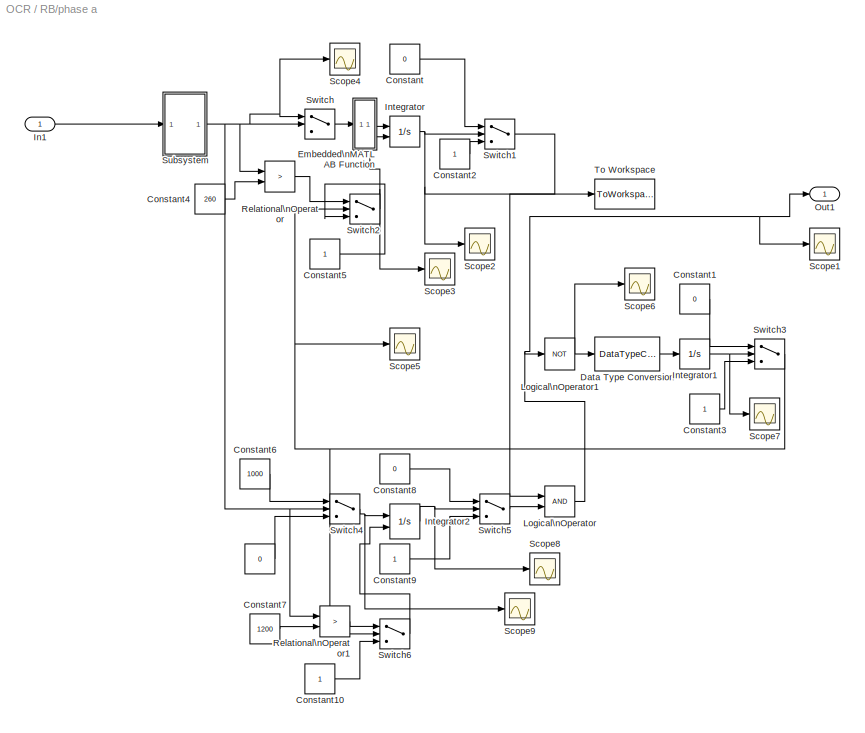
BLOCK [SubSystem] RB/phase a
  Ports = [1, 1]
  RequestExecContextInheritance = off
  SID = 2717
BLOCK [Constant] RB/phase a/ 
  SID = 2719
  Value = 0
BLOCK [Constant] RB/phase a/Constant
  SID = 2720
  Value = 0
BLOCK [Constant] RB/phase a/Constant1
  SID = 2721
  Value = 0
BLOCK [Constant] RB/phase a/Constant10
  SID = 2722
BLOCK [Constant] RB/phase a/Constant2
  SID = 2723
BLOCK [Constant] RB/phase a/Constant3
  SID = 2724
BLOCK [Constant] RB/phase a/Constant4
  SID = 2725
  Value = 260
BLOCK [Constant] RB/phase a/Constant5
  SID = 2726
BLOCK [Constant] RB/phase a/Constant6
  SID = 2727
  Value = 1000
BLOCK [Constant] RB/phase a/Constant7
  SID = 2728
  Value = 1200
BLOCK [Constant] RB/phase a/Constant8
  SID = 2729
  Value = 0
BLOCK [Constant] RB/phase a/Constant9
  SID = 2730
BLOCK [DataTypeConversion] RB/phase a/Data Type Conversion
  RndMeth = Floor
  SID = 2731
  SaturateOnIntegerOverflow = off
BLOCK [SubSystem] RB/phase a/Embedded\nMATLAB Function
  ErrorFcn = Stateflow.Translate.translate
  PermitHierarchicalResolution = ExplicitOnly
  Ports = [1, 1]
  RequestExecContextInheritance = off
  SFBlockType = MATLAB Function
  SID = 2732
  TreatAsAtomicUnit = on
BLOCK [Demux] RB/phase a/Embedded\nMATLAB Function/ Demux 
  Outputs = 1
  Ports = [1, 1]
  SID = 2732::19
BLOCK [S-Function] RB/phase a/Embedded\nMATLAB Function/ SFunction 
  EnableBusSupport = off
  FunctionName = sf_sfun
  PortCounts = [1 2]
  Ports = [1, 2]
  SFcnIsStateOwnerBlock = off
  SFunctionDeploymentMode = off
  SID = 2732::18
  Tag = Stateflow S-Function 7
BLOCK [Terminator] RB/phase a/Embedded\nMATLAB Function/ Terminator 
  SID = 2732::20
BLOCK [Inport] RB/phase a/Embedded\nMATLAB Function/u
  IconDisplay = Port number
  SID = 2732::1
BLOCK [Outport] RB/phase a/Embedded\nMATLAB Function/y
  IconDisplay = Port number
  SID = 2732::5
BLOCK [Inport] RB/phase a/In1
  IconDisplay = Port number
  SID = 2718
BLOCK [Integrator] RB/phase a/Integrator
  ExternalReset = falling
  Ports = [2, 1]
  SID = 2733
BLOCK [Integrator] RB/phase a/Integrator1
  Ports = [1, 1]
  SID = 2734
BLOCK [Integrator] RB/phase a/Integrator2
  ExternalReset = falling
  Ports = [2, 1]
  SID = 2735
BLOCK [Logic] RB/phase a/Logical\nOperator
  AllPortsSameDT = off
  OutDataTypeStr = boolean
  Ports = [2, 1]
  SID = 2736
BLOCK [Logic] RB/phase a/Logical\nOperator1
  AllPortsSameDT = off
  Operator = NOT
  OutDataTypeStr = boolean
  Ports = [1, 1]
  SID = 2737
BLOCK [Outport] RB/phase a/Out1
  IconDisplay = Port number
  SID = 2791
BLOCK [RelationalOperator] RB/phase a/Relational\nOperator
  InputSameDT = off
  Operator = >
  OutDataTypeStr = boolean
  Ports = [2, 1]
  SID = 2738
BLOCK [RelationalOperator] RB/phase a/Relational\nOperator1
  InputSameDT = off
  Operator = >
  OutDataTypeStr = boolean
  Ports = [2, 1]
  SID = 2739
BLOCK [Scope] RB/phase a/Scope1
  Floating = off
  NumInputPorts = 1
  Ports = [1]
  SID = 2740
BLOCK [Scope] RB/phase a/Scope2
  Floating = off
  NumInputPorts = 1
  Ports = [1]
  SID = 2741
  ScopeSpecificationString = C++SS(StrPVP('Location','[113, 456, 437, 695]'),StrPVP('Open','off'),MxPVP('AxesTitles',54,'struct(''axes1'',''%<SignalLabel>'')'),StrPVP('TimeRange','15              '),StrPVP('YMin','7031.53'),StrPVP('YMax','7771.69'),StrPVP('SaveName','ScopeData5'),StrPVP('DataFormat','StructureWithTime'),StrPVP('BlockParamSampleTime','0'),StrPVP('LimitDataPoints','on'),StrPVP('Decimation','1'),StrPVP('BlockPar...<+22ch>
BLOCK [Scope] RB/phase a/Scope3
  Floating = off
  NumInputPorts = 1
  Ports = [1]
  SID = 2742
BLOCK [Scope] RB/phase a/Scope4
  Floating = off
  NumInputPorts = 1
  Ports = [1]
  SID = 2743
BLOCK [Scope] RB/phase a/Scope5
  Floating = off
  NumInputPorts = 1
  Ports = [1]
  SID = 2744
BLOCK [Scope] RB/phase a/Scope6
  Floating = off
  NumInputPorts = 1
  Ports = [1]
  SID = 2745
BLOCK [Scope] RB/phase a/Scope7
  Floating = off
  NumInputPorts = 1
  Ports = [1]
  SID = 2746
BLOCK [Scope] RB/phase a/Scope8
  Floating = off
  NumInputPorts = 1
  Ports = [1]
  SID = 2747
BLOCK [Scope] RB/phase a/Scope9
  Floating = off
  NumInputPorts = 1
  Ports = [1]
  SID = 2748
BLOCK [SubSystem] RB/phase a/Subsystem
  Ports = [1, 1]
  RequestExecContextInheritance = off
  SID = 2749
BLOCK [MATLABFcn] RB/phase a/Subsystem/Absolute
  MATLABFcn = abs
  Ports = [1, 1]
  SID = 2751
BLOCK [HitCross] RB/phase a/Subsystem/Check zero \nCrossing
  Ports = [1, 1]
  SID = 2752
BLOCK [Derivative] RB/phase a/Subsystem/Derivative
  SID = 2753
BLOCK [Product] RB/phase a/Subsystem/Divide
  InputSameDT = off
  Inputs = /*
  OutDataTypeStr = Inherit: Inherit via internal rule
  Ports = [2, 1]
  RndMeth = Floor
  SID = 2754
  SaturateOnIntegerOverflow = off
BLOCK [Gain] RB/phase a/Subsystem/Gain
  Gain = 2*pi
  OutDataTypeStr = Inherit: Inherit via internal rule
  ParamDataTypeStr = Inherit: Inherit via internal rule
  SID = 2755
  SaturateOnIntegerOverflow = off
BLOCK [Reference] RB/phase a/Subsystem/Hold derivative\n till next zero crossing  REF=powerlib_extras/Discrete \nControl Blocks/Discrete\nSample & Hold
  FunctionWithSeparateData = off
  Ports = [2, 1]
  RTWMemSecDataConstants = Inherit from model
  RTWMemSecDataInternal = Inherit from model
  RTWMemSecDataParameters = Inherit from model
  RTWMemSecFuncExecute = Inherit from model
  RTWMemSecFuncInitTerm = Inherit from model
  SID = 2756
  ShowPortLabels = FromPortIcon
  SourceBlock = powerlib_extras/Discrete \nControl Blocks/Discrete\nSample & Hold
  SourceProductBaseCode = PS
  SourceProductName = Simscape Electrical
  SourceType = Discrete Sample & Hold
  SystemSampleTime = -1
  Ts = -1
  ic = 0
BLOCK [Inport] RB/phase a/Subsystem/In1
  IconDisplay = Port number
  SID = 2750
BLOCK [Outport] RB/phase a/Subsystem/Out1
  IconDisplay = Port number
  SID = 2782
BLOCK [SubSystem] RB/phase a/Subsystem/frequency\nmeasuremant\n
  Ports = [1, 1]
  RequestExecContextInheritance = off
  SID = 2757
BLOCK [Constant] RB/phase a/Subsystem/frequency\nmeasuremant\n/Constant
  SID = 2759
  Value = 0.5
BLOCK [DataTypeConversion] RB/phase a/Subsystem/frequency\nmeasuremant\n/Data Type Conversion
  OutDataTypeStr = double
  RndMeth = Floor
  SID = 2760
  SaturateOnIntegerOverflow = off
BLOCK [Product] RB/phase a/Subsystem/frequency\nmeasuremant\n/Divide
  InputSameDT = off
  Inputs = */
  OutDataTypeStr = Inherit: Inherit via internal rule
  Ports = [2, 1]
  RndMeth = Floor
  SID = 2761
  SaturateOnIntegerOverflow = off
BLOCK [Outport] RB/phase a/Subsystem/frequency\nmeasuremant\n/Freq\n
  IconDisplay = Port number
  SID = 2781
BLOCK [From] RB/phase a/Subsystem/frequency\nmeasuremant\n/From
  CloseFcn = tagdialog Close
  SID = 2762
BLOCK [From] RB/phase a/Subsystem/frequency\nmeasuremant\n/From2
  CloseFcn = tagdialog Close
  GotoTag = B
  SID = 2763
BLOCK [From] RB/phase a/Subsystem/frequency\nmeasuremant\n/From3
  CloseFcn = tagdialog Close
  SID = 2764
BLOCK [Gain] RB/phase a/Subsystem/frequency\nmeasuremant\n/Gain
  Gain = 1e8
  OutDataTypeStr = Inherit: Inherit via internal rule
  ParamDataTypeStr = Inherit: Inherit via internal rule
  SID = 2765
  SaturateOnIntegerOverflow = off
BLOCK [Gain] RB/phase a/Subsystem/frequency\nmeasuremant\n/Gain1
  Gain = 1e-8
  OutDataTypeStr = Inherit: Inherit via internal rule
  ParamDataTypeStr = Inherit: Inherit via internal rule
  SID = 2766
  SaturateOnIntegerOverflow = off
BLOCK [Goto] RB/phase a/Subsystem/frequency\nmeasuremant\n/Goto
  SID = 2767
BLOCK [Goto] RB/phase a/Subsystem/frequency\nmeasuremant\n/Goto1
  GotoTag = B
  SID = 2768
BLOCK [HitCross] RB/phase a/Subsystem/frequency\nmeasuremant\n/Hit \nCrossing
  Ports = [1, 1]
  SID = 2769
BLOCK [If] RB/phase a/Subsystem/frequency\nmeasuremant\n/If
  Ports = [1, 2]
  SID = 2770
BLOCK [SubSystem] RB/phase a/Subsystem/frequency\nmeasuremant\n/If Action\nSubsystem
  Ports = [1, 1, 0, 0, 0, 0, 0, 1]
  RequestExecContextInheritance = off
  SID = 2771
  TreatAsAtomicUnit = on
BLOCK [ActionPort] RB/phase a/Subsystem/frequency\nmeasuremant\n/If Action\nSubsystem/Action Port
  ActionPortLabel = if { }
  SID = 2773
BLOCK [Inport] RB/phase a/Subsystem/frequency\nmeasuremant\n/If Action\nSubsystem/In1
  IconDisplay = Port number
  SID = 2772
BLOCK [Outport] RB/phase a/Subsystem/frequency\nmeasuremant\n/If Action\nSubsystem/Out1
  IconDisplay = Port number
  SID = 2774
BLOCK [Reference] RB/phase a/Subsystem/frequency\nmeasuremant\n/Ramp  REF=simulink/Sources/Ramp
  FunctionWithSeparateData = off
  Ports = [0, 1]
  RTWMemSecDataConstants = Inherit from model
  RTWMemSecDataInternal = Inherit from model
  RTWMemSecDataParameters = Inherit from model
  RTWMemSecFuncExecute = Inherit from model
  RTWMemSecFuncInitTerm = Inherit from model
  SID = 2775
  ShowPortLabels = FromPortIcon
  SourceBlock = simulink/Sources/Ramp
  SourceProductBaseCode = SL
  SourceProductName = Simulink
  SourceType = Ramp
  SystemSampleTime = -1
  VectorParams1D = on
  X0 = 0
  slope = 1
  start = 0
BLOCK [Reference] RB/phase a/Subsystem/frequency\nmeasuremant\n/Sample & Hold  REF=powerlib_extras/Control \nBlocks/Sample & Hold
  FunctionWithSeparateData = off
  Ports = [2, 1]
  RTWMemSecDataConstants = Inherit from model
  RTWMemSecDataInternal = Inherit from model
  RTWMemSecDataParameters = Inherit from model
  RTWMemSecFuncExecute = Inherit from model
  RTWMemSecFuncInitTerm = Inherit from model
  SID = 2776
  ShowPortLabels = FromPortIcon
  SourceBlock = powerlib_extras/Control \nBlocks/Sample & Hold
  SourceProductBaseCode = PS
  SourceProductName = Simscape Electrical
  SourceType = Sample & Hold
  SystemSampleTime = -1
  ic = 0
BLOCK [Scope] RB/phase a/Subsystem/frequency\nmeasuremant\n/Scope1
  Floating = off
  NumInputPorts = 1
  Ports = [1]
  SID = 2777
BLOCK [Scope] RB/phase a/Subsystem/frequency\nmeasuremant\n/Scope2
  Floating = off
  NumInputPorts = 1
  Ports = [1]
  SID = 2778
BLOCK [Sum] RB/phase a/Subsystem/frequency\nmeasuremant\n/Sum
  IconShape = round
  InputSameDT = off
  Inputs = +-
  OutDataTypeStr = Inherit: Inherit via internal rule
  Ports = [2, 1]
  SID = 2779
  SaturateOnIntegerOverflow = off
BLOCK [TransportDelay] RB/phase a/Subsystem/frequency\nmeasuremant\n/Transport\nDelay
  DelayTime = 0.0000000000000000000000001
  Ports = [1, 1]
  SID = 2780
BLOCK [Inport] RB/phase a/Subsystem/frequency\nmeasuremant\n/signal
  IconDisplay = Port number
  SID = 2758
BLOCK [Switch] RB/phase a/Switch
  Criteria = u2 > Threshold
  InputSameDT = off
  SID = 2783
  SaturateOnIntegerOverflow = off
  Threshold = 260
BLOCK [Switch] RB/phase a/Switch1
  Criteria = u2 > Threshold
  InputSameDT = off
  SID = 2784
  SaturateOnIntegerOverflow = off
  Threshold = 1100
  ZeroCross = off
BLOCK [Switch] RB/phase a/Switch2
  Criteria = u2 > Threshold
  InputSameDT = off
  SID = 2785
  SaturateOnIntegerOverflow = off
  Threshold = 0.5
BLOCK [Switch] RB/phase a/Switch3
  Criteria = u2 > Threshold
  InputSameDT = off
  SID = 2786
  SaturateOnIntegerOverflow = off
  Threshold = 0.000001
BLOCK [Switch] RB/phase a/Switch4
  Criteria = u2 > Threshold
  InputSameDT = off
  SID = 2787
  SaturateOnIntegerOverflow = off
  Threshold = 1200
BLOCK [Switch] RB/phase a/Switch5
  Criteria = u2 > Threshold
  InputSameDT = off
  SID = 2788
  SaturateOnIntegerOverflow = off
  Threshold = 100
  ZeroCross = off
BLOCK [Switch] RB/phase a/Switch6
  Criteria = u2 > Threshold
  InputSameDT = off
  SID = 2789
  SaturateOnIntegerOverflow = off
  Threshold = 0.5
BLOCK [ToWorkspace] RB/phase a/To Workspace
  MaxDataPoints = inf
  Ports = [1]
  SID = 2790
  SampleTime = -1
  VariableName = in
BLOCK [SubSystem] RB/phase a1
  Ports = [1, 1]
  RequestExecContextInheritance = off
  SID = 2792
BLOCK [Constant] RB/phase a1/ 
  SID = 2794
  Value = 0
BLOCK [Constant] RB/phase a1/Constant
  SID = 2795
  Value = 0
BLOCK [Constant] RB/phase a1/Constant1
  SID = 2796
  Value = 0
BLOCK [Constant] RB/phase a1/Constant10
  SID = 2797
BLOCK [Constant] RB/phase a1/Constant2
  SID = 2798
BLOCK [Constant] RB/phase a1/Constant3
  SID = 2799
BLOCK [Constant] RB/phase a1/Constant4
  SID = 2800
  Value = 260
BLOCK [Constant] RB/phase a1/Constant5
  SID = 2801
BLOCK [Constant] RB/phase a1/Constant6
  SID = 2802
  Value = 1000
BLOCK [Constant] RB/phase a1/Constant7
  SID = 2803
  Value = 1200
BLOCK [Constant] RB/phase a1/Constant8
  SID = 2804
  Value = 0
BLOCK [Constant] RB/phase a1/Constant9
  SID = 2805
BLOCK [DataTypeConversion] RB/phase a1/Data Type Conversion
  RndMeth = Floor
  SID = 2806
  SaturateOnIntegerOverflow = off
BLOCK [SubSystem] RB/phase a1/Embedded\nMATLAB Function
  ErrorFcn = Stateflow.Translate.translate
  PermitHierarchicalResolution = ExplicitOnly
  Ports = [1, 1]
  RequestExecContextInheritance = off
  SFBlockType = MATLAB Function
  SID = 2807
  TreatAsAtomicUnit = on
BLOCK [Demux] RB/phase a1/Embedded\nMATLAB Function/ Demux 
  Outputs = 1
  Ports = [1, 1]
  SID = 2807::19
BLOCK [S-Function] RB/phase a1/Embedded\nMATLAB Function/ SFunction 
  EnableBusSupport = off
  FunctionName = sf_sfun
  PortCounts = [1 2]
  Ports = [1, 2]
  SFcnIsStateOwnerBlock = off
  SFunctionDeploymentMode = off
  SID = 2807::18
  Tag = Stateflow S-Function 8
BLOCK [Terminator] RB/phase a1/Embedded\nMATLAB Function/ Terminator 
  SID = 2807::20
BLOCK [Inport] RB/phase a1/Embedded\nMATLAB Function/u
  IconDisplay = Port number
  SID = 2807::1
BLOCK [Outport] RB/phase a1/Embedded\nMATLAB Function/y
  IconDisplay = Port number
  SID = 2807::5
BLOCK [Inport] RB/phase a1/In1
  IconDisplay = Port number
  SID = 2793
BLOCK [Integrator] RB/phase a1/Integrator
  ExternalReset = falling
  Ports = [2, 1]
  SID = 2808
BLOCK [Integrator] RB/phase a1/Integrator1
  Ports = [1, 1]
  SID = 2809
BLOCK [Integrator] RB/phase a1/Integrator2
  ExternalReset = falling
  Ports = [2, 1]
  SID = 2810
BLOCK [Logic] RB/phase a1/Logical\nOperator
  AllPortsSameDT = off
  OutDataTypeStr = boolean
  Ports = [2, 1]
  SID = 2811
BLOCK [Logic] RB/phase a1/Logical\nOperator1
  AllPortsSameDT = off
  Operator = NOT
  OutDataTypeStr = boolean
  Ports = [1, 1]
  SID = 2812
BLOCK [Outport] RB/phase a1/Out1
  IconDisplay = Port number
  SID = 2865
BLOCK [RelationalOperator] RB/phase a1/Relational\nOperator
  InputSameDT = off
  Operator = >
  OutDataTypeStr = boolean
  Ports = [2, 1]
  SID = 2813
BLOCK [RelationalOperator] RB/phase a1/Relational\nOperator1
  InputSameDT = off
  Operator = >
  OutDataTypeStr = boolean
  Ports = [2, 1]
  SID = 2814
BLOCK [Scope] RB/phase a1/Scope1
  Floating = off
  NumInputPorts = 1
  Ports = [1]
  SID = 2815
BLOCK [Scope] RB/phase a1/Scope2
  Floating = off
  NumInputPorts = 1
  Ports = [1]
  SID = 2816
BLOCK [Scope] RB/phase a1/Scope3
  Floating = off
  NumInputPorts = 1
  Ports = [1]
  SID = 2817
BLOCK [Scope] RB/phase a1/Scope4
  Floating = off
  NumInputPorts = 1
  Ports = [1]
  SID = 2818
BLOCK [Scope] RB/phase a1/Scope5
  Floating = off
  NumInputPorts = 1
  Ports = [1]
  SID = 2819
BLOCK [Scope] RB/phase a1/Scope6
  Floating = off
  NumInputPorts = 1
  Ports = [1]
  SID = 2820
BLOCK [Scope] RB/phase a1/Scope7
  Floating = off
  NumInputPorts = 1
  Ports = [1]
  SID = 2821
BLOCK [Scope] RB/phase a1/Scope8
  Floating = off
  NumInputPorts = 1
  Ports = [1]
  SID = 2822
BLOCK [Scope] RB/phase a1/Scope9
  Floating = off
  NumInputPorts = 1
  Ports = [1]
  SID = 2823
BLOCK [SubSystem] RB/phase a1/Subsystem
  Ports = [1, 1]
  RequestExecContextInheritance = off
  SID = 2824
BLOCK [MATLABFcn] RB/phase a1/Subsystem/Absolute
  MATLABFcn = abs
  Ports = [1, 1]
  SID = 2826
BLOCK [HitCross] RB/phase a1/Subsystem/Check zero \nCrossing
  Ports = [1, 1]
  SID = 2827
BLOCK [Derivative] RB/phase a1/Subsystem/Derivative
  SID = 2828
BLOCK [Product] RB/phase a1/Subsystem/Divide
  InputSameDT = off
  Inputs = /*
  OutDataTypeStr = Inherit: Inherit via internal rule
  Ports = [2, 1]
  RndMeth = Floor
  SID = 2829
  SaturateOnIntegerOverflow = off
BLOCK [Gain] RB/phase a1/Subsystem/Gain
  Gain = 2*pi
  OutDataTypeStr = Inherit: Inherit via internal rule
  ParamDataTypeStr = Inherit: Inherit via internal rule
  SID = 2830
  SaturateOnIntegerOverflow = off
BLOCK [Reference] RB/phase a1/Subsystem/Hold derivative\n till next zero crossing  REF=powerlib_extras/Discrete \nControl Blocks/Discrete\nSample & Hold
  FunctionWithSeparateData = off
  Ports = [2, 1]
  RTWMemSecDataConstants = Inherit from model
  RTWMemSecDataInternal = Inherit from model
  RTWMemSecDataParameters = Inherit from model
  RTWMemSecFuncExecute = Inherit from model
  RTWMemSecFuncInitTerm = Inherit from model
  SID = 2831
  ShowPortLabels = FromPortIcon
  SourceBlock = powerlib_extras/Discrete \nControl Blocks/Discrete\nSample & Hold
  SourceProductBaseCode = PS
  SourceProductName = Simscape Electrical
  SourceType = Discrete Sample & Hold
  SystemSampleTime = -1
  Ts = -1
  ic = 0
BLOCK [Inport] RB/phase a1/Subsystem/In1
  IconDisplay = Port number
  SID = 2825
BLOCK [Outport] RB/phase a1/Subsystem/Out1
  IconDisplay = Port number
  SID = 2857
BLOCK [SubSystem] RB/phase a1/Subsystem/frequency\nmeasuremant\n
  Ports = [1, 1]
  RequestExecContextInheritance = off
  SID = 2832
BLOCK [Constant] RB/phase a1/Subsystem/frequency\nmeasuremant\n/Constant
  SID = 2834
  Value = 0.5
BLOCK [DataTypeConversion] RB/phase a1/Subsystem/frequency\nmeasuremant\n/Data Type Conversion
  OutDataTypeStr = double
  RndMeth = Floor
  SID = 2835
  SaturateOnIntegerOverflow = off
BLOCK [Product] RB/phase a1/Subsystem/frequency\nmeasuremant\n/Divide
  InputSameDT = off
  Inputs = */
  OutDataTypeStr = Inherit: Inherit via internal rule
  Ports = [2, 1]
  RndMeth = Floor
  SID = 2836
  SaturateOnIntegerOverflow = off
BLOCK [Outport] RB/phase a1/Subsystem/frequency\nmeasuremant\n/Freq\n
  IconDisplay = Port number
  SID = 2856
BLOCK [From] RB/phase a1/Subsystem/frequency\nmeasuremant\n/From
  CloseFcn = tagdialog Close
  SID = 2837
BLOCK [From] RB/phase a1/Subsystem/frequency\nmeasuremant\n/From2
  CloseFcn = tagdialog Close
  GotoTag = B
  SID = 2838
BLOCK [From] RB/phase a1/Subsystem/frequency\nmeasuremant\n/From3
  CloseFcn = tagdialog Close
  SID = 2839
BLOCK [Gain] RB/phase a1/Subsystem/frequency\nmeasuremant\n/Gain
  Gain = 1e8
  OutDataTypeStr = Inherit: Inherit via internal rule
  ParamDataTypeStr = Inherit: Inherit via internal rule
  SID = 2840
  SaturateOnIntegerOverflow = off
BLOCK [Gain] RB/phase a1/Subsystem/frequency\nmeasuremant\n/Gain1
  Gain = 1e-8
  OutDataTypeStr = Inherit: Inherit via internal rule
  ParamDataTypeStr = Inherit: Inherit via internal rule
  SID = 2841
  SaturateOnIntegerOverflow = off
BLOCK [Goto] RB/phase a1/Subsystem/frequency\nmeasuremant\n/Goto
  SID = 2842
BLOCK [Goto] RB/phase a1/Subsystem/frequency\nmeasuremant\n/Goto1
  GotoTag = B
  SID = 2843
BLOCK [HitCross] RB/phase a1/Subsystem/frequency\nmeasuremant\n/Hit \nCrossing
  Ports = [1, 1]
  SID = 2844
BLOCK [If] RB/phase a1/Subsystem/frequency\nmeasuremant\n/If
  Ports = [1, 2]
  SID = 2845
BLOCK [SubSystem] RB/phase a1/Subsystem/frequency\nmeasuremant\n/If Action\nSubsystem
  Ports = [1, 1, 0, 0, 0, 0, 0, 1]
  RequestExecContextInheritance = off
  SID = 2846
  TreatAsAtomicUnit = on
BLOCK [ActionPort] RB/phase a1/Subsystem/frequency\nmeasuremant\n/If Action\nSubsystem/Action Port
  ActionPortLabel = if { }
  SID = 2848
BLOCK [Inport] RB/phase a1/Subsystem/frequency\nmeasuremant\n/If Action\nSubsystem/In1
  IconDisplay = Port number
  SID = 2847
BLOCK [Outport] RB/phase a1/Subsystem/frequency\nmeasuremant\n/If Action\nSubsystem/Out1
  IconDisplay = Port number
  SID = 2849
BLOCK [Reference] RB/phase a1/Subsystem/frequency\nmeasuremant\n/Ramp  REF=simulink/Sources/Ramp
  FunctionWithSeparateData = off
  Ports = [0, 1]
  RTWMemSecDataConstants = Inherit from model
  RTWMemSecDataInternal = Inherit from model
  RTWMemSecDataParameters = Inherit from model
  RTWMemSecFuncExecute = Inherit from model
  RTWMemSecFuncInitTerm = Inherit from model
  SID = 2850
  ShowPortLabels = FromPortIcon
  SourceBlock = simulink/Sources/Ramp
  SourceProductBaseCode = SL
  SourceProductName = Simulink
  SourceType = Ramp
  SystemSampleTime = -1
  VectorParams1D = on
  X0 = 0
  slope = 1
  start = 0
BLOCK [Reference] RB/phase a1/Subsystem/frequency\nmeasuremant\n/Sample & Hold  REF=powerlib_extras/Control \nBlocks/Sample & Hold
  FunctionWithSeparateData = off
  Ports = [2, 1]
  RTWMemSecDataConstants = Inherit from model
  RTWMemSecDataInternal = Inherit from model
  RTWMemSecDataParameters = Inherit from model
  RTWMemSecFuncExecute = Inherit from model
  RTWMemSecFuncInitTerm = Inherit from model
  SID = 2851
  ShowPortLabels = FromPortIcon
  SourceBlock = powerlib_extras/Control \nBlocks/Sample & Hold
  SourceProductBaseCode = PS
  SourceProductName = Simscape Electrical
  SourceType = Sample & Hold
  SystemSampleTime = -1
  ic = 0
BLOCK [Scope] RB/phase a1/Subsystem/frequency\nmeasuremant\n/Scope1
  Floating = off
  NumInputPorts = 1
  Ports = [1]
  SID = 2852
BLOCK [Scope] RB/phase a1/Subsystem/frequency\nmeasuremant\n/Scope2
  Floating = off
  NumInputPorts = 1
  Ports = [1]
  SID = 2853
BLOCK [Sum] RB/phase a1/Subsystem/frequency\nmeasuremant\n/Sum
  IconShape = round
  InputSameDT = off
  Inputs = +-
  OutDataTypeStr = Inherit: Inherit via internal rule
  Ports = [2, 1]
  SID = 2854
  SaturateOnIntegerOverflow = off
BLOCK [TransportDelay] RB/phase a1/Subsystem/frequency\nmeasuremant\n/Transport\nDelay
  DelayTime = 0.0000000000000000000000001
  Ports = [1, 1]
  SID = 2855
BLOCK [Inport] RB/phase a1/Subsystem/frequency\nmeasuremant\n/signal
  IconDisplay = Port number
  SID = 2833
BLOCK [Switch] RB/phase a1/Switch
  Criteria = u2 > Threshold
  InputSameDT = off
  SID = 2858
  SaturateOnIntegerOverflow = off
  Threshold = 260
BLOCK [Switch] RB/phase a1/Switch1
  Criteria = u2 > Threshold
  InputSameDT = off
  SID = 2859
  SaturateOnIntegerOverflow = off
  Threshold = 1100
  ZeroCross = off
BLOCK [Switch] RB/phase a1/Switch2
  Criteria = u2 > Threshold
  InputSameDT = off
  SID = 2860
  SaturateOnIntegerOverflow = off
  Threshold = 0.5
BLOCK [Switch] RB/phase a1/Switch3
  Criteria = u2 > Threshold
  InputSameDT = off
  SID = 2861
  SaturateOnIntegerOverflow = off
  Threshold = 0.000001
BLOCK [Switch] RB/phase a1/Switch4
  Criteria = u2 > Threshold
  InputSameDT = off
  SID = 2862
  SaturateOnIntegerOverflow = off
  Threshold = 1200
BLOCK [Switch] RB/phase a1/Switch5
  Criteria = u2 > Threshold
  InputSameDT = off
  SID = 2863
  SaturateOnIntegerOverflow = off
  Threshold = 100
  ZeroCross = off
BLOCK [Switch] RB/phase a1/Switch6
  Criteria = u2 > Threshold
  InputSameDT = off
  SID = 2864
  SaturateOnIntegerOverflow = off
  Threshold = 0.5
BLOCK [SubSystem] RB/phase a2
  Ports = [1, 1]
  RequestExecContextInheritance = off
  SID = 2866
BLOCK [Constant] RB/phase a2/ 
  SID = 2868
  Value = 0
BLOCK [Constant] RB/phase a2/Constant
  SID = 2869
  Value = 0
BLOCK [Constant] RB/phase a2/Constant1
  SID = 2870
  Value = 0
BLOCK [Constant] RB/phase a2/Constant10
  SID = 2871
BLOCK [Constant] RB/phase a2/Constant2
  SID = 2872
BLOCK [Constant] RB/phase a2/Constant3
  SID = 2873
BLOCK [Constant] RB/phase a2/Constant4
  SID = 2874
  Value = 260
BLOCK [Constant] RB/phase a2/Constant5
  SID = 2875
BLOCK [Constant] RB/phase a2/Constant6
  SID = 2876
  Value = 1000
BLOCK [Constant] RB/phase a2/Constant7
  SID = 2877
  Value = 1200
BLOCK [Constant] RB/phase a2/Constant8
  SID = 2878
  Value = 0
BLOCK [Constant] RB/phase a2/Constant9
  SID = 2879
BLOCK [DataTypeConversion] RB/phase a2/Data Type Conversion
  RndMeth = Floor
  SID = 2880
  SaturateOnIntegerOverflow = off
BLOCK [SubSystem] RB/phase a2/Embedded\nMATLAB Function
  ErrorFcn = Stateflow.Translate.translate
  PermitHierarchicalResolution = ExplicitOnly
  Ports = [1, 1]
  RequestExecContextInheritance = off
  SFBlockType = MATLAB Function
  SID = 2881
  TreatAsAtomicUnit = on
BLOCK [Demux] RB/phase a2/Embedded\nMATLAB Function/ Demux 
  Outputs = 1
  Ports = [1, 1]
  SID = 2881::19
BLOCK [S-Function] RB/phase a2/Embedded\nMATLAB Function/ SFunction 
  EnableBusSupport = off
  FunctionName = sf_sfun
  PortCounts = [1 2]
  Ports = [1, 2]
  SFcnIsStateOwnerBlock = off
  SFunctionDeploymentMode = off
  SID = 2881::18
  Tag = Stateflow S-Function 9
BLOCK [Terminator] RB/phase a2/Embedded\nMATLAB Function/ Terminator 
  SID = 2881::20
BLOCK [Inport] RB/phase a2/Embedded\nMATLAB Function/u
  IconDisplay = Port number
  SID = 2881::1
BLOCK [Outport] RB/phase a2/Embedded\nMATLAB Function/y
  IconDisplay = Port number
  SID = 2881::5
BLOCK [Inport] RB/phase a2/In1
  IconDisplay = Port number
  SID = 2867
BLOCK [Integrator] RB/phase a2/Integrator
  ExternalReset = falling
  Ports = [2, 1]
  SID = 2882
BLOCK [Integrator] RB/phase a2/Integrator1
  Ports = [1, 1]
  SID = 2883
BLOCK [Integrator] RB/phase a2/Integrator2
  ExternalReset = falling
  Ports = [2, 1]
  SID = 2884
BLOCK [Logic] RB/phase a2/Logical\nOperator
  AllPortsSameDT = off
  OutDataTypeStr = boolean
  Ports = [2, 1]
  SID = 2885
BLOCK [Logic] RB/phase a2/Logical\nOperator1
  AllPortsSameDT = off
  Operator = NOT
  OutDataTypeStr = boolean
  Ports = [1, 1]
  SID = 2886
BLOCK [Outport] RB/phase a2/Out1
  IconDisplay = Port number
  SID = 2939
BLOCK [RelationalOperator] RB/phase a2/Relational\nOperator
  InputSameDT = off
  Operator = >
  OutDataTypeStr = boolean
  Ports = [2, 1]
  SID = 2887
BLOCK [RelationalOperator] RB/phase a2/Relational\nOperator1
  InputSameDT = off
  Operator = >
  OutDataTypeStr = boolean
  Ports = [2, 1]
  SID = 2888
BLOCK [Scope] RB/phase a2/Scope1
  Floating = off
  NumInputPorts = 1
  Ports = [1]
  SID = 2889
BLOCK [Scope] RB/phase a2/Scope2
  Floating = off
  NumInputPorts = 1
  Ports = [1]
  SID = 2890
BLOCK [Scope] RB/phase a2/Scope3
  Floating = off
  NumInputPorts = 1
  Ports = [1]
  SID = 2891
BLOCK [Scope] RB/phase a2/Scope4
  Floating = off
  NumInputPorts = 1
  Ports = [1]
  SID = 2892
BLOCK [Scope] RB/phase a2/Scope5
  Floating = off
  NumInputPorts = 1
  Ports = [1]
  SID = 2893
BLOCK [Scope] RB/phase a2/Scope6
  Floating = off
  NumInputPorts = 1
  Ports = [1]
  SID = 2894
BLOCK [Scope] RB/phase a2/Scope7
  Floating = off
  NumInputPorts = 1
  Ports = [1]
  SID = 2895
BLOCK [Scope] RB/phase a2/Scope8
  Floating = off
  NumInputPorts = 1
  Ports = [1]
  SID = 2896
BLOCK [Scope] RB/phase a2/Scope9
  Floating = off
  NumInputPorts = 1
  Ports = [1]
  SID = 2897
BLOCK [SubSystem] RB/phase a2/Subsystem
  Ports = [1, 1]
  RequestExecContextInheritance = off
  SID = 2898
BLOCK [MATLABFcn] RB/phase a2/Subsystem/Absolute
  MATLABFcn = abs
  Ports = [1, 1]
  SID = 2900
BLOCK [HitCross] RB/phase a2/Subsystem/Check zero \nCrossing
  Ports = [1, 1]
  SID = 2901
BLOCK [Derivative] RB/phase a2/Subsystem/Derivative
  SID = 2902
BLOCK [Product] RB/phase a2/Subsystem/Divide
  InputSameDT = off
  Inputs = /*
  OutDataTypeStr = Inherit: Inherit via internal rule
  Ports = [2, 1]
  RndMeth = Floor
  SID = 2903
  SaturateOnIntegerOverflow = off
BLOCK [Gain] RB/phase a2/Subsystem/Gain
  Gain = 2*pi
  OutDataTypeStr = Inherit: Inherit via internal rule
  ParamDataTypeStr = Inherit: Inherit via internal rule
  SID = 2904
  SaturateOnIntegerOverflow = off
BLOCK [Reference] RB/phase a2/Subsystem/Hold derivative\n till next zero crossing  REF=powerlib_extras/Discrete \nControl Blocks/Discrete\nSample & Hold
  FunctionWithSeparateData = off
  Ports = [2, 1]
  RTWMemSecDataConstants = Inherit from model
  RTWMemSecDataInternal = Inherit from model
  RTWMemSecDataParameters = Inherit from model
  RTWMemSecFuncExecute = Inherit from model
  RTWMemSecFuncInitTerm = Inherit from model
  SID = 2905
  ShowPortLabels = FromPortIcon
  SourceBlock = powerlib_extras/Discrete \nControl Blocks/Discrete\nSample & Hold
  SourceProductBaseCode = PS
  SourceProductName = Simscape Electrical
  SourceType = Discrete Sample & Hold
  SystemSampleTime = -1
  Ts = -1
  ic = 0
BLOCK [Inport] RB/phase a2/Subsystem/In1
  IconDisplay = Port number
  SID = 2899
BLOCK [Outport] RB/phase a2/Subsystem/Out1
  IconDisplay = Port number
  SID = 2931
BLOCK [SubSystem] RB/phase a2/Subsystem/frequency\nmeasuremant\n
  Ports = [1, 1]
  RequestExecContextInheritance = off
  SID = 2906
BLOCK [Constant] RB/phase a2/Subsystem/frequency\nmeasuremant\n/Constant
  SID = 2908
  Value = 0.5
BLOCK [DataTypeConversion] RB/phase a2/Subsystem/frequency\nmeasuremant\n/Data Type Conversion
  OutDataTypeStr = double
  RndMeth = Floor
  SID = 2909
  SaturateOnIntegerOverflow = off
BLOCK [Product] RB/phase a2/Subsystem/frequency\nmeasuremant\n/Divide
  InputSameDT = off
  Inputs = */
  OutDataTypeStr = Inherit: Inherit via internal rule
  Ports = [2, 1]
  RndMeth = Floor
  SID = 2910
  SaturateOnIntegerOverflow = off
BLOCK [Outport] RB/phase a2/Subsystem/frequency\nmeasuremant\n/Freq\n
  IconDisplay = Port number
  SID = 2930
BLOCK [From] RB/phase a2/Subsystem/frequency\nmeasuremant\n/From
  CloseFcn = tagdialog Close
  SID = 2911
BLOCK [From] RB/phase a2/Subsystem/frequency\nmeasuremant\n/From2
  CloseFcn = tagdialog Close
  GotoTag = B
  SID = 2912
BLOCK [From] RB/phase a2/Subsystem/frequency\nmeasuremant\n/From3
  CloseFcn = tagdialog Close
  SID = 2913
BLOCK [Gain] RB/phase a2/Subsystem/frequency\nmeasuremant\n/Gain
  Gain = 1e8
  OutDataTypeStr = Inherit: Inherit via internal rule
  ParamDataTypeStr = Inherit: Inherit via internal rule
  SID = 2914
  SaturateOnIntegerOverflow = off
BLOCK [Gain] RB/phase a2/Subsystem/frequency\nmeasuremant\n/Gain1
  Gain = 1e-8
  OutDataTypeStr = Inherit: Inherit via internal rule
  ParamDataTypeStr = Inherit: Inherit via internal rule
  SID = 2915
  SaturateOnIntegerOverflow = off
BLOCK [Goto] RB/phase a2/Subsystem/frequency\nmeasuremant\n/Goto
  SID = 2916
BLOCK [Goto] RB/phase a2/Subsystem/frequency\nmeasuremant\n/Goto1
  GotoTag = B
  SID = 2917
BLOCK [HitCross] RB/phase a2/Subsystem/frequency\nmeasuremant\n/Hit \nCrossing
  Ports = [1, 1]
  SID = 2918
BLOCK [If] RB/phase a2/Subsystem/frequency\nmeasuremant\n/If
  Ports = [1, 2]
  SID = 2919
BLOCK [SubSystem] RB/phase a2/Subsystem/frequency\nmeasuremant\n/If Action\nSubsystem
  Ports = [1, 1, 0, 0, 0, 0, 0, 1]
  RequestExecContextInheritance = off
  SID = 2920
  TreatAsAtomicUnit = on
BLOCK [ActionPort] RB/phase a2/Subsystem/frequency\nmeasuremant\n/If Action\nSubsystem/Action Port
  ActionPortLabel = if { }
  SID = 2922
BLOCK [Inport] RB/phase a2/Subsystem/frequency\nmeasuremant\n/If Action\nSubsystem/In1
  IconDisplay = Port number
  SID = 2921
BLOCK [Outport] RB/phase a2/Subsystem/frequency\nmeasuremant\n/If Action\nSubsystem/Out1
  IconDisplay = Port number
  SID = 2923
BLOCK [Reference] RB/phase a2/Subsystem/frequency\nmeasuremant\n/Ramp  REF=simulink/Sources/Ramp
  FunctionWithSeparateData = off
  Ports = [0, 1]
  RTWMemSecDataConstants = Inherit from model
  RTWMemSecDataInternal = Inherit from model
  RTWMemSecDataParameters = Inherit from model
  RTWMemSecFuncExecute = Inherit from model
  RTWMemSecFuncInitTerm = Inherit from model
  SID = 2924
  ShowPortLabels = FromPortIcon
  SourceBlock = simulink/Sources/Ramp
  SourceProductBaseCode = SL
  SourceProductName = Simulink
  SourceType = Ramp
  SystemSampleTime = -1
  VectorParams1D = on
  X0 = 0
  slope = 1
  start = 0
BLOCK [Reference] RB/phase a2/Subsystem/frequency\nmeasuremant\n/Sample & Hold  REF=powerlib_extras/Control \nBlocks/Sample & Hold
  FunctionWithSeparateData = off
  Ports = [2, 1]
  RTWMemSecDataConstants = Inherit from model
  RTWMemSecDataInternal = Inherit from model
  RTWMemSecDataParameters = Inherit from model
  RTWMemSecFuncExecute = Inherit from model
  RTWMemSecFuncInitTerm = Inherit from model
  SID = 2925
  ShowPortLabels = FromPortIcon
  SourceBlock = powerlib_extras/Control \nBlocks/Sample & Hold
  SourceProductBaseCode = PS
  SourceProductName = Simscape Electrical
  SourceType = Sample & Hold
  SystemSampleTime = -1
  ic = 0
BLOCK [Scope] RB/phase a2/Subsystem/frequency\nmeasuremant\n/Scope1
  Floating = off
  NumInputPorts = 1
  Ports = [1]
  SID = 2926
BLOCK [Scope] RB/phase a2/Subsystem/frequency\nmeasuremant\n/Scope2
  Floating = off
  NumInputPorts = 1
  Ports = [1]
  SID = 2927
BLOCK [Sum] RB/phase a2/Subsystem/frequency\nmeasuremant\n/Sum
  IconShape = round
  InputSameDT = off
  Inputs = +-
  OutDataTypeStr = Inherit: Inherit via internal rule
  Ports = [2, 1]
  SID = 2928
  SaturateOnIntegerOverflow = off
BLOCK [TransportDelay] RB/phase a2/Subsystem/frequency\nmeasuremant\n/Transport\nDelay
  DelayTime = 0.0000000000000000000000001
  Ports = [1, 1]
  SID = 2929
BLOCK [Inport] RB/phase a2/Subsystem/frequency\nmeasuremant\n/signal
  IconDisplay = Port number
  SID = 2907
BLOCK [Switch] RB/phase a2/Switch
  Criteria = u2 > Threshold
  InputSameDT = off
  SID = 2932
  SaturateOnIntegerOverflow = off
  Threshold = 260
BLOCK [Switch] RB/phase a2/Switch1
  Criteria = u2 > Threshold
  InputSameDT = off
  SID = 2933
  SaturateOnIntegerOverflow = off
  Threshold = 1100
  ZeroCross = off
BLOCK [Switch] RB/phase a2/Switch2
  Criteria = u2 > Threshold
  InputSameDT = off
  SID = 2934
  SaturateOnIntegerOverflow = off
  Threshold = 0.5
BLOCK [Switch] RB/phase a2/Switch3
  Criteria = u2 > Threshold
  InputSameDT = off
  SID = 2935
  SaturateOnIntegerOverflow = off
  Threshold = 0.000001
BLOCK [Switch] RB/phase a2/Switch4
  Criteria = u2 > Threshold
  InputSameDT = off
  SID = 2936
  SaturateOnIntegerOverflow = off
  Threshold = 1200
BLOCK [Switch] RB/phase a2/Switch5
  Criteria = u2 > Threshold
  InputSameDT = off
  SID = 2937
  SaturateOnIntegerOverflow = off
  Threshold = 100
  ZeroCross = off
BLOCK [Switch] RB/phase a2/Switch6
  Criteria = u2 > Threshold
  InputSameDT = off
  SID = 2938
  SaturateOnIntegerOverflow = off
  Threshold = 0.5
BLOCK [Scope] Scope
  Floating = off
  NumInputPorts = 3
  Ports = [3]
  SID = 2710
  ScopeSpecificationString = C++SS(StrPVP('Location','[5, 52, 1029, 733]'),StrPVP('Open','off'),MxPVP('AxesTitles',54,'struct(''axes1'',''%<SignalLabel>'',''axes2'',''%<SignalLabel>'',''axes3'',''%<SignalLabel>'')'),StrPVP('YMin','1~0~-800'),StrPVP('YMax','1~1~800'),StrPVP('SaveName','ScopeData10'),StrPVP('DataFormat','StructureWithTime'),StrPVP('BlockParamSampleTime','0'),StrPVP('LimitDataPoints','on'),StrPVP('Decimation','1...<+41ch>
BLOCK [Reference] \n      REF=powerlib/Measurements/Current Measurement
  FunctionWithSeparateData = off
  OutputType = Complex
  PSBequivalent = 0
  PhasorSimulation = off
  Ports = [0, 1, 0, 0, 0, 1, 1]
  RTWMemSecDataConstants = Inherit from model
  RTWMemSecDataInternal = Inherit from model
  RTWMemSecDataParameters = Inherit from model
  RTWMemSecFuncExecute = Inherit from model
  RTWMemSecFuncInitTerm = Inherit from model
  SID = 861
  ShowPortLabels = FromPortIcon
  SourceBlock = powerlib/Measurements/Current Measurement
  SourceProductBaseCode = PS
  SourceProductName = Simscape Electrical
  SourceType = Current Measurement
  SystemSampleTime = -1
BLOCK [Reference] \n                                                      REF=powerlib/Measurements/Current Measurement
  FunctionWithSeparateData = off
  OutputType = Complex
  PSBequivalent = 0
  PhasorSimulation = off
  Ports = [0, 1, 0, 0, 0, 1, 1]
  RTWMemSecDataConstants = Inherit from model
  RTWMemSecDataInternal = Inherit from model
  RTWMemSecDataParameters = Inherit from model
  RTWMemSecFuncExecute = Inherit from model
  RTWMemSecFuncInitTerm = Inherit from model
  SID = 5
  ShowPortLabels = FromPortIcon
  SourceBlock = powerlib/Measurements/Current Measurement
  SourceProductBaseCode = PS
  SourceProductName = Simscape Electrical
  SourceType = Current Measurement
  SystemSampleTime = -1
BLOCK [Reference] \n                                                             REF=powerlib/Measurements/Current Measurement
  FunctionWithSeparateData = off
  OutputType = Complex
  PSBequivalent = 0
  PhasorSimulation = off
  Ports = [0, 1, 0, 0, 0, 1, 1]
  RTWMemSecDataConstants = Inherit from model
  RTWMemSecDataInternal = Inherit from model
  RTWMemSecDataParameters = Inherit from model
  RTWMemSecFuncExecute = Inherit from model
  RTWMemSecFuncInitTerm = Inherit from model
  SID = 3
  ShowPortLabels = FromPortIcon
  SourceBlock = powerlib/Measurements/Current Measurement
  SourceProductBaseCode = PS
  SourceProductName = Simscape Electrical
  SourceType = Current Measurement
  SystemSampleTime = -1
BLOCK [Reference] \n1  REF=powerlib/Measurements/Current Measurement
  FunctionWithSeparateData = off
  OutputType = Complex
  PSBequivalent = 0
  PhasorSimulation = off
  Ports = [0, 1, 0, 0, 0, 1, 1]
  RTWMemSecDataConstants = Inherit from model
  RTWMemSecDataInternal = Inherit from model
  RTWMemSecDataParameters = Inherit from model
  RTWMemSecFuncExecute = Inherit from model
  RTWMemSecFuncInitTerm = Inherit from model
  SID = 859
  ShowPortLabels = FromPortIcon
  SourceBlock = powerlib/Measurements/Current Measurement
  SourceProductBaseCode = PS
  SourceProductName = Simscape Electrical
  SourceType = Current Measurement
  SystemSampleTime = -1
BLOCK [Reference] \n16  REF=powerlib/Measurements/Current Measurement
  FunctionWithSeparateData = off
  OutputType = Complex
  PSBequivalent = 0
  PhasorSimulation = off
  Ports = [0, 1, 0, 0, 0, 1, 1]
  RTWMemSecDataConstants = Inherit from model
  RTWMemSecDataInternal = Inherit from model
  RTWMemSecDataParameters = Inherit from model
  RTWMemSecFuncExecute = Inherit from model
  RTWMemSecFuncInitTerm = Inherit from model
  SID = 4
  ShowPortLabels = FromPortIcon
  SourceBlock = powerlib/Measurements/Current Measurement
  SourceProductBaseCode = PS
  SourceProductName = Simscape Electrical
  SourceType = Current Measurement
  SystemSampleTime = -1
BLOCK [Reference] \n2  REF=powerlib/Measurements/Current Measurement
  FunctionWithSeparateData = off
  OutputType = Complex
  PSBequivalent = 0
  PhasorSimulation = off
  Ports = [0, 1, 0, 0, 0, 1, 1]
  RTWMemSecDataConstants = Inherit from model
  RTWMemSecDataInternal = Inherit from model
  RTWMemSecDataParameters = Inherit from model
  RTWMemSecFuncExecute = Inherit from model
  RTWMemSecFuncInitTerm = Inherit from model
  SID = 860
  ShowPortLabels = FromPortIcon
  SourceBlock = powerlib/Measurements/Current Measurement
  SourceProductBaseCode = PS
  SourceProductName = Simscape Electrical
  SourceType = Current Measurement
  SystemSampleTime = -1
BLOCK [Reference] powergui  REF=powerlib/powergui
  DisableRonSwitches = off
  DisableSnubberDevices = off
  DisableVfSwitches = off
  DisplayEquations = off
  DisplayStyle = 1
  EnableUseOfTLC = off
  FreqAxis = off
  FunctionMessages = off
  FunctionWithSeparateData = off
  HookPort = off
  Interpol = off
  MaxFrequency = 1000
  Ports = []
  Priority = 1
  RTWMemSecDataConstants = Inherit from model
  RTWMemSecDataInternal = Inherit from model
  RTWMemSecDataParameters = Inherit from model
  RTWMemSecFuncExecute = Inherit from model
  RTWMemSecFuncInitTerm = Inherit from model
  ResistiveCurrentMeasurement = off
  RestoreLinks = warning
  SID = 326
  SPID = off
  SampleTime = 50e-6
  ShowGrid = off
  ShowPortLabels = FromPortIcon
  SourceBlock = powerlib/powergui
  SourceProductBaseCode = PS
  SourceProductName = Simscape Electrical
  SourceType = PSB option menu block
  StartTime = 0.0
  SwTol = 0
  SystemSampleTime = -1
  UserDataPersistent = on
  Xlog = on
  Ylog = off
  ZoomFFT = off
  cycles = 1
  display = off
  echomessages = off
  frequency = 60
  frequencyindice = 0
  frequencyindicesteady = 1
  methode = off
  save = off
  variable = ZData
  x0status = blocks
LINE Constant:1 ->  :1
LINE RA/ 18:1 -> RA/Trip:1
LINE RA/Logical\nOperator:1 -> RA/ 18:1
LINE RA/a:1 -> RA/phase a:1
LINE RA/b:1 -> RA/phase a1:1
LINE RA/c:1 -> RA/phase a2:1
LINE RA/phase a/ :1 -> RA/phase a/Switch4:3
LINE RA/phase a/Constant10:1 -> RA/phase a/Switch6:3
LINE RA/phase a/Constant1:1 -> RA/phase a/Switch3:1
LINE RA/phase a/Constant2:1 -> RA/phase a/Switch1:3
LINE RA/phase a/Constant3:1 -> RA/phase a/Switch3:3
LINE RA/phase a/Constant4:1 -> RA/phase a/Relational\nOperator:2
LINE RA/phase a/Constant5:1 -> RA/phase a/Switch2:3
LINE RA/phase a/Constant6:1 -> RA/phase a/Switch4:1
LINE RA/phase a/Constant7:1 -> RA/phase a/Relational\nOperator1:2
LINE RA/phase a/Constant8:1 -> RA/phase a/Switch5:1
LINE RA/phase a/Constant9:1 -> RA/phase a/Switch5:3
LINE RA/phase a/Constant:1 -> RA/phase a/Switch1:1
LINE RA/phase a/Data Type Conversion:1 -> RA/phase a/Integrator1:1
LINE RA/phase a/Embedded\nMATLAB Function/ Demux :1 -> RA/phase a/Embedded\nMATLAB Function/ Terminator :1
LINE RA/phase a/Embedded\nMATLAB Function/ SFunction :1 -> RA/phase a/Embedded\nMATLAB Function/ Demux :1
LINE RA/phase a/Embedded\nMATLAB Function/ SFunction :2 -> RA/phase a/Embedded\nMATLAB Function/y:1
LINE RA/phase a/Embedded\nMATLAB Function/u:1 -> RA/phase a/Embedded\nMATLAB Function/ SFunction :1
LINE RA/phase a/Embedded\nMATLAB Function:1 -> RA/phase a/Integrator:1
LINE RA/phase a/In1:1 -> RA/phase a/Subsystem:1
NET RA/phase a/Integrator1:1 -> RA/phase a/Scope7:1, RA/phase a/Switch3:2
NET RA/phase a/Integrator2:1 -> RA/phase a/Scope8:1, RA/phase a/Switch5:2
NET RA/phase a/Integrator:1 -> RA/phase a/Scope2:1, RA/phase a/Switch1:2
NET RA/phase a/Logical\nOperator1:1 -> RA/phase a/Data Type Conversion:1, RA/phase a/Scope6:1
NET RA/phase a/Logical\nOperator:1 -> RA/phase a/Logical\nOperator1:1, RA/phase a/Out1:1, RA/phase a/Scope1:1
LINE RA/phase a/Relational\nOperator1:1 -> RA/phase a/Switch6:1
LINE RA/phase a/Relational\nOperator:1 -> RA/phase a/Switch2:1
LINE RA/phase a/Subsystem/Absolute:1 -> RA/phase a/Subsystem/Divide:2
LINE RA/phase a/Subsystem/Check zero \nCrossing:1 -> RA/phase a/Subsystem/Hold derivative\n till next zero crossing:2
LINE RA/phase a/Subsystem/Derivative:1 -> RA/phase a/Subsystem/Hold derivative\n till next zero crossing:1
LINE RA/phase a/Subsystem/Divide:1 -> RA/phase a/Subsystem/Out1:1
LINE RA/phase a/Subsystem/Gain:1 -> RA/phase a/Subsystem/Divide:1
LINE RA/phase a/Subsystem/Hold derivative\n till next zero crossing:1 -> RA/phase a/Subsystem/Absolute:1
NET RA/phase a/Subsystem/In1:1 -> RA/phase a/Subsystem/Check zero \nCrossing:1, RA/phase a/Subsystem/Derivative:1, RA/phase a/Subsystem/frequency\nmeasuremant\n:1
LINE RA/phase a/Subsystem/frequency\nmeasuremant\n/Constant:1 -> RA/phase a/Subsystem/frequency\nmeasuremant\n/Divide:1
LINE RA/phase a/Subsystem/frequency\nmeasuremant\n/Data Type Conversion:1 -> RA/phase a/Subsystem/frequency\nmeasuremant\n/If:1
LINE RA/phase a/Subsystem/frequency\nmeasuremant\n/Divide:1 -> RA/phase a/Subsystem/frequency\nmeasuremant\n/Freq\n:1
LINE RA/phase a/Subsystem/frequency\nmeasuremant\n/From2:1 -> RA/phase a/Subsystem/frequency\nmeasuremant\n/Sum:2
LINE RA/phase a/Subsystem/frequency\nmeasuremant\n/From3:1 -> RA/phase a/Subsystem/frequency\nmeasuremant\n/Sum:1
LINE RA/phase a/Subsystem/frequency\nmeasuremant\n/From:1 -> RA/phase a/Subsystem/frequency\nmeasuremant\n/Transport\nDelay:1
LINE RA/phase a/Subsystem/frequency\nmeasuremant\n/Gain1:1 -> RA/phase a/Subsystem/frequency\nmeasuremant\n/Divide:2
NET RA/phase a/Subsystem/frequency\nmeasuremant\n/Gain:1 -> RA/phase a/Subsystem/frequency\nmeasuremant\n/Sample & Hold:1, RA/phase a/Subsystem/frequency\nmeasuremant\n/Sample & Hold:2, RA/phase a/Subsystem/frequency\nmeasuremant\n/Scope2:1
LINE RA/phase a/Subsystem/frequency\nmeasuremant\n/Hit \nCrossing:1 -> RA/phase a/Subsystem/frequency\nmeasuremant\n/Data Type Conversion:1
LINE RA/phase a/Subsystem/frequency\nmeasuremant\n/If Action\nSubsystem/In1:1 -> RA/phase a/Subsystem/frequency\nmeasuremant\n/If Action\nSubsystem/Out1:1
NET RA/phase a/Subsystem/frequency\nmeasuremant\n/If Action\nSubsystem:1 -> RA/phase a/Subsystem/frequency\nmeasuremant\n/Goto:1, RA/phase a/Subsystem/frequency\nmeasuremant\n/Scope1:1
LINE RA/phase a/Subsystem/frequency\nmeasuremant\n/If:1 -> RA/phase a/Subsystem/frequency\nmeasuremant\n/If Action\nSubsystem:ifaction
LINE RA/phase a/Subsystem/frequency\nmeasuremant\n/Ramp:1 -> RA/phase a/Subsystem/frequency\nmeasuremant\n/If Action\nSubsystem:1
LINE RA/phase a/Subsystem/frequency\nmeasuremant\n/Sample & Hold:1 -> RA/phase a/Subsystem/frequency\nmeasuremant\n/Gain1:1
LINE RA/phase a/Subsystem/frequency\nmeasuremant\n/Sum:1 -> RA/phase a/Subsystem/frequency\nmeasuremant\n/Gain:1
LINE RA/phase a/Subsystem/frequency\nmeasuremant\n/Transport\nDelay:1 -> RA/phase a/Subsystem/frequency\nmeasuremant\n/Goto1:1
LINE RA/phase a/Subsystem/frequency\nmeasuremant\n/signal:1 -> RA/phase a/Subsystem/frequency\nmeasuremant\n/Hit \nCrossing:1
LINE RA/phase a/Subsystem/frequency\nmeasuremant\n:1 -> RA/phase a/Subsystem/Gain:1
NET RA/phase a/Subsystem:1 -> RA/phase a/Relational\nOperator1:1, RA/phase a/Relational\nOperator:1, RA/phase a/Scope4:1, RA/phase a/Switch4:2, RA/phase a/Switch:1, RA/phase a/Switch:2
LINE RA/phase a/Switch1:1 -> RA/phase a/Logical\nOperator:1
NET RA/phase a/Switch2:1 -> RA/phase a/Integrator:2, RA/phase a/Scope3:1
NET RA/phase a/Switch3:1 -> RA/phase a/Scope5:1, RA/phase a/Switch2:2, RA/phase a/Switch6:2
NET RA/phase a/Switch4:1 -> RA/phase a/Integrator2:1, RA/phase a/Scope9:1
LINE RA/phase a/Switch5:1 -> RA/phase a/Logical\nOperator:2
LINE RA/phase a/Switch6:1 -> RA/phase a/Integrator2:2
LINE RA/phase a/Switch:1 -> RA/phase a/Embedded\nMATLAB Function:1
LINE RA/phase a1/ :1 -> RA/phase a1/Switch4:3
LINE RA/phase a1/Constant10:1 -> RA/phase a1/Switch6:3
LINE RA/phase a1/Constant1:1 -> RA/phase a1/Switch3:1
LINE RA/phase a1/Constant2:1 -> RA/phase a1/Switch1:3
LINE RA/phase a1/Constant3:1 -> RA/phase a1/Switch3:3
LINE RA/phase a1/Constant4:1 -> RA/phase a1/Relational\nOperator:2
LINE RA/phase a1/Constant5:1 -> RA/phase a1/Switch2:3
LINE RA/phase a1/Constant6:1 -> RA/phase a1/Switch4:1
LINE RA/phase a1/Constant7:1 -> RA/phase a1/Relational\nOperator1:2
LINE RA/phase a1/Constant8:1 -> RA/phase a1/Switch5:1
LINE RA/phase a1/Constant9:1 -> RA/phase a1/Switch5:3
LINE RA/phase a1/Constant:1 -> RA/phase a1/Switch1:1
LINE RA/phase a1/Data Type Conversion:1 -> RA/phase a1/Integrator1:1
LINE RA/phase a1/Embedded\nMATLAB Function/ Demux :1 -> RA/phase a1/Embedded\nMATLAB Function/ Terminator :1
LINE RA/phase a1/Embedded\nMATLAB Function/ SFunction :1 -> RA/phase a1/Embedded\nMATLAB Function/ Demux :1
LINE RA/phase a1/Embedded\nMATLAB Function/ SFunction :2 -> RA/phase a1/Embedded\nMATLAB Function/y:1
LINE RA/phase a1/Embedded\nMATLAB Function/u:1 -> RA/phase a1/Embedded\nMATLAB Function/ SFunction :1
LINE RA/phase a1/Embedded\nMATLAB Function:1 -> RA/phase a1/Integrator:1
LINE RA/phase a1/In1:1 -> RA/phase a1/Subsystem:1
NET RA/phase a1/Integrator1:1 -> RA/phase a1/Scope7:1, RA/phase a1/Switch3:2
NET RA/phase a1/Integrator2:1 -> RA/phase a1/Scope8:1, RA/phase a1/Switch5:2
NET RA/phase a1/Integrator:1 -> RA/phase a1/Scope2:1, RA/phase a1/Switch1:2
NET RA/phase a1/Logical\nOperator1:1 -> RA/phase a1/Data Type Conversion:1, RA/phase a1/Scope6:1
NET RA/phase a1/Logical\nOperator:1 -> RA/phase a1/Logical\nOperator1:1, RA/phase a1/Out1:1, RA/phase a1/Scope1:1
LINE RA/phase a1/Relational\nOperator1:1 -> RA/phase a1/Switch6:1
LINE RA/phase a1/Relational\nOperator:1 -> RA/phase a1/Switch2:1
LINE RA/phase a1/Subsystem/Absolute:1 -> RA/phase a1/Subsystem/Divide:2
LINE RA/phase a1/Subsystem/Check zero \nCrossing:1 -> RA/phase a1/Subsystem/Hold derivative\n till next zero crossing:2
LINE RA/phase a1/Subsystem/Derivative:1 -> RA/phase a1/Subsystem/Hold derivative\n till next zero crossing:1
LINE RA/phase a1/Subsystem/Divide:1 -> RA/phase a1/Subsystem/Out1:1
LINE RA/phase a1/Subsystem/Gain:1 -> RA/phase a1/Subsystem/Divide:1
LINE RA/phase a1/Subsystem/Hold derivative\n till next zero crossing:1 -> RA/phase a1/Subsystem/Absolute:1
NET RA/phase a1/Subsystem/In1:1 -> RA/phase a1/Subsystem/Check zero \nCrossing:1, RA/phase a1/Subsystem/Derivative:1, RA/phase a1/Subsystem/frequency\nmeasuremant\n:1
LINE RA/phase a1/Subsystem/frequency\nmeasuremant\n/Constant:1 -> RA/phase a1/Subsystem/frequency\nmeasuremant\n/Divide:1
LINE RA/phase a1/Subsystem/frequency\nmeasuremant\n/Data Type Conversion:1 -> RA/phase a1/Subsystem/frequency\nmeasuremant\n/If:1
LINE RA/phase a1/Subsystem/frequency\nmeasuremant\n/Divide:1 -> RA/phase a1/Subsystem/frequency\nmeasuremant\n/Freq\n:1
LINE RA/phase a1/Subsystem/frequency\nmeasuremant\n/From2:1 -> RA/phase a1/Subsystem/frequency\nmeasuremant\n/Sum:2
LINE RA/phase a1/Subsystem/frequency\nmeasuremant\n/From3:1 -> RA/phase a1/Subsystem/frequency\nmeasuremant\n/Sum:1
LINE RA/phase a1/Subsystem/frequency\nmeasuremant\n/From:1 -> RA/phase a1/Subsystem/frequency\nmeasuremant\n/Transport\nDelay:1
LINE RA/phase a1/Subsystem/frequency\nmeasuremant\n/Gain1:1 -> RA/phase a1/Subsystem/frequency\nmeasuremant\n/Divide:2
NET RA/phase a1/Subsystem/frequency\nmeasuremant\n/Gain:1 -> RA/phase a1/Subsystem/frequency\nmeasuremant\n/Sample & Hold:1, RA/phase a1/Subsystem/frequency\nmeasuremant\n/Sample & Hold:2, RA/phase a1/Subsystem/frequency\nmeasuremant\n/Scope2:1
LINE RA/phase a1/Subsystem/frequency\nmeasuremant\n/Hit \nCrossing:1 -> RA/phase a1/Subsystem/frequency\nmeasuremant\n/Data Type Conversion:1
LINE RA/phase a1/Subsystem/frequency\nmeasuremant\n/If Action\nSubsystem/In1:1 -> RA/phase a1/Subsystem/frequency\nmeasuremant\n/If Action\nSubsystem/Out1:1
NET RA/phase a1/Subsystem/frequency\nmeasuremant\n/If Action\nSubsystem:1 -> RA/phase a1/Subsystem/frequency\nmeasuremant\n/Goto:1, RA/phase a1/Subsystem/frequency\nmeasuremant\n/Scope1:1
LINE RA/phase a1/Subsystem/frequency\nmeasuremant\n/If:1 -> RA/phase a1/Subsystem/frequency\nmeasuremant\n/If Action\nSubsystem:ifaction
LINE RA/phase a1/Subsystem/frequency\nmeasuremant\n/Ramp:1 -> RA/phase a1/Subsystem/frequency\nmeasuremant\n/If Action\nSubsystem:1
LINE RA/phase a1/Subsystem/frequency\nmeasuremant\n/Sample & Hold:1 -> RA/phase a1/Subsystem/frequency\nmeasuremant\n/Gain1:1
LINE RA/phase a1/Subsystem/frequency\nmeasuremant\n/Sum:1 -> RA/phase a1/Subsystem/frequency\nmeasuremant\n/Gain:1
LINE RA/phase a1/Subsystem/frequency\nmeasuremant\n/Transport\nDelay:1 -> RA/phase a1/Subsystem/frequency\nmeasuremant\n/Goto1:1
LINE RA/phase a1/Subsystem/frequency\nmeasuremant\n/signal:1 -> RA/phase a1/Subsystem/frequency\nmeasuremant\n/Hit \nCrossing:1
LINE RA/phase a1/Subsystem/frequency\nmeasuremant\n:1 -> RA/phase a1/Subsystem/Gain:1
NET RA/phase a1/Subsystem:1 -> RA/phase a1/Relational\nOperator1:1, RA/phase a1/Relational\nOperator:1, RA/phase a1/Scope4:1, RA/phase a1/Switch4:2, RA/phase a1/Switch:1, RA/phase a1/Switch:2
LINE RA/phase a1/Switch1:1 -> RA/phase a1/Logical\nOperator:1
NET RA/phase a1/Switch2:1 -> RA/phase a1/Integrator:2, RA/phase a1/Scope3:1
NET RA/phase a1/Switch3:1 -> RA/phase a1/Scope5:1, RA/phase a1/Switch2:2, RA/phase a1/Switch6:2
NET RA/phase a1/Switch4:1 -> RA/phase a1/Integrator2:1, RA/phase a1/Scope9:1
LINE RA/phase a1/Switch5:1 -> RA/phase a1/Logical\nOperator:2
LINE RA/phase a1/Switch6:1 -> RA/phase a1/Integrator2:2
LINE RA/phase a1/Switch:1 -> RA/phase a1/Embedded\nMATLAB Function:1
LINE RA/phase a1:1 -> RA/Logical\nOperator:2
LINE RA/phase a2/ :1 -> RA/phase a2/Switch4:3
LINE RA/phase a2/Constant10:1 -> RA/phase a2/Switch6:3
LINE RA/phase a2/Constant1:1 -> RA/phase a2/Switch3:1
LINE RA/phase a2/Constant2:1 -> RA/phase a2/Switch1:3
LINE RA/phase a2/Constant3:1 -> RA/phase a2/Switch3:3
LINE RA/phase a2/Constant4:1 -> RA/phase a2/Relational\nOperator:2
LINE RA/phase a2/Constant5:1 -> RA/phase a2/Switch2:3
LINE RA/phase a2/Constant6:1 -> RA/phase a2/Switch4:1
LINE RA/phase a2/Constant7:1 -> RA/phase a2/Relational\nOperator1:2
LINE RA/phase a2/Constant8:1 -> RA/phase a2/Switch5:1
LINE RA/phase a2/Constant9:1 -> RA/phase a2/Switch5:3
LINE RA/phase a2/Constant:1 -> RA/phase a2/Switch1:1
LINE RA/phase a2/Data Type Conversion:1 -> RA/phase a2/Integrator1:1
LINE RA/phase a2/Embedded\nMATLAB Function/ Demux :1 -> RA/phase a2/Embedded\nMATLAB Function/ Terminator :1
LINE RA/phase a2/Embedded\nMATLAB Function/ SFunction :1 -> RA/phase a2/Embedded\nMATLAB Function/ Demux :1
LINE RA/phase a2/Embedded\nMATLAB Function/ SFunction :2 -> RA/phase a2/Embedded\nMATLAB Function/y:1
LINE RA/phase a2/Embedded\nMATLAB Function/u:1 -> RA/phase a2/Embedded\nMATLAB Function/ SFunction :1
LINE RA/phase a2/Embedded\nMATLAB Function:1 -> RA/phase a2/Integrator:1
LINE RA/phase a2/In1:1 -> RA/phase a2/Subsystem:1
NET RA/phase a2/Integrator1:1 -> RA/phase a2/Scope7:1, RA/phase a2/Switch3:2
NET RA/phase a2/Integrator2:1 -> RA/phase a2/Scope8:1, RA/phase a2/Switch5:2
NET RA/phase a2/Integrator:1 -> RA/phase a2/Scope2:1, RA/phase a2/Switch1:2
NET RA/phase a2/Logical\nOperator1:1 -> RA/phase a2/Data Type Conversion:1, RA/phase a2/Scope6:1
NET RA/phase a2/Logical\nOperator:1 -> RA/phase a2/Logical\nOperator1:1, RA/phase a2/Out1:1, RA/phase a2/Scope1:1
LINE RA/phase a2/Relational\nOperator1:1 -> RA/phase a2/Switch6:1
LINE RA/phase a2/Relational\nOperator:1 -> RA/phase a2/Switch2:1
LINE RA/phase a2/Subsystem/Absolute:1 -> RA/phase a2/Subsystem/Divide:2
LINE RA/phase a2/Subsystem/Check zero \nCrossing:1 -> RA/phase a2/Subsystem/Hold derivative\n till next zero crossing:2
LINE RA/phase a2/Subsystem/Derivative:1 -> RA/phase a2/Subsystem/Hold derivative\n till next zero crossing:1
LINE RA/phase a2/Subsystem/Divide:1 -> RA/phase a2/Subsystem/Out1:1
LINE RA/phase a2/Subsystem/Gain:1 -> RA/phase a2/Subsystem/Divide:1
LINE RA/phase a2/Subsystem/Hold derivative\n till next zero crossing:1 -> RA/phase a2/Subsystem/Absolute:1
NET RA/phase a2/Subsystem/In1:1 -> RA/phase a2/Subsystem/Check zero \nCrossing:1, RA/phase a2/Subsystem/Derivative:1, RA/phase a2/Subsystem/frequency\nmeasuremant\n:1
LINE RA/phase a2/Subsystem/frequency\nmeasuremant\n/Constant:1 -> RA/phase a2/Subsystem/frequency\nmeasuremant\n/Divide:1
LINE RA/phase a2/Subsystem/frequency\nmeasuremant\n/Data Type Conversion:1 -> RA/phase a2/Subsystem/frequency\nmeasuremant\n/If:1
LINE RA/phase a2/Subsystem/frequency\nmeasuremant\n/Divide:1 -> RA/phase a2/Subsystem/frequency\nmeasuremant\n/Freq\n:1
LINE RA/phase a2/Subsystem/frequency\nmeasuremant\n/From2:1 -> RA/phase a2/Subsystem/frequency\nmeasuremant\n/Sum:2
LINE RA/phase a2/Subsystem/frequency\nmeasuremant\n/From3:1 -> RA/phase a2/Subsystem/frequency\nmeasuremant\n/Sum:1
LINE RA/phase a2/Subsystem/frequency\nmeasuremant\n/From:1 -> RA/phase a2/Subsystem/frequency\nmeasuremant\n/Transport\nDelay:1
LINE RA/phase a2/Subsystem/frequency\nmeasuremant\n/Gain1:1 -> RA/phase a2/Subsystem/frequency\nmeasuremant\n/Divide:2
NET RA/phase a2/Subsystem/frequency\nmeasuremant\n/Gain:1 -> RA/phase a2/Subsystem/frequency\nmeasuremant\n/Sample & Hold:1, RA/phase a2/Subsystem/frequency\nmeasuremant\n/Sample & Hold:2, RA/phase a2/Subsystem/frequency\nmeasuremant\n/Scope2:1
LINE RA/phase a2/Subsystem/frequency\nmeasuremant\n/Hit \nCrossing:1 -> RA/phase a2/Subsystem/frequency\nmeasuremant\n/Data Type Conversion:1
LINE RA/phase a2/Subsystem/frequency\nmeasuremant\n/If Action\nSubsystem/In1:1 -> RA/phase a2/Subsystem/frequency\nmeasuremant\n/If Action\nSubsystem/Out1:1
NET RA/phase a2/Subsystem/frequency\nmeasuremant\n/If Action\nSubsystem:1 -> RA/phase a2/Subsystem/frequency\nmeasuremant\n/Goto:1, RA/phase a2/Subsystem/frequency\nmeasuremant\n/Scope1:1
LINE RA/phase a2/Subsystem/frequency\nmeasuremant\n/If:1 -> RA/phase a2/Subsystem/frequency\nmeasuremant\n/If Action\nSubsystem:ifaction
LINE RA/phase a2/Subsystem/frequency\nmeasuremant\n/Ramp:1 -> RA/phase a2/Subsystem/frequency\nmeasuremant\n/If Action\nSubsystem:1
LINE RA/phase a2/Subsystem/frequency\nmeasuremant\n/Sample & Hold:1 -> RA/phase a2/Subsystem/frequency\nmeasuremant\n/Gain1:1
LINE RA/phase a2/Subsystem/frequency\nmeasuremant\n/Sum:1 -> RA/phase a2/Subsystem/frequency\nmeasuremant\n/Gain:1
LINE RA/phase a2/Subsystem/frequency\nmeasuremant\n/Transport\nDelay:1 -> RA/phase a2/Subsystem/frequency\nmeasuremant\n/Goto1:1
LINE RA/phase a2/Subsystem/frequency\nmeasuremant\n/signal:1 -> RA/phase a2/Subsystem/frequency\nmeasuremant\n/Hit \nCrossing:1
LINE RA/phase a2/Subsystem/frequency\nmeasuremant\n:1 -> RA/phase a2/Subsystem/Gain:1
NET RA/phase a2/Subsystem:1 -> RA/phase a2/Relational\nOperator1:1, RA/phase a2/Relational\nOperator:1, RA/phase a2/Scope4:1, RA/phase a2/Switch4:2, RA/phase a2/Switch:1, RA/phase a2/Switch:2
LINE RA/phase a2/Switch1:1 -> RA/phase a2/Logical\nOperator:1
NET RA/phase a2/Switch2:1 -> RA/phase a2/Integrator:2, RA/phase a2/Scope3:1
NET RA/phase a2/Switch3:1 -> RA/phase a2/Scope5:1, RA/phase a2/Switch2:2, RA/phase a2/Switch6:2
NET RA/phase a2/Switch4:1 -> RA/phase a2/Integrator2:1, RA/phase a2/Scope9:1
LINE RA/phase a2/Switch5:1 -> RA/phase a2/Logical\nOperator:2
LINE RA/phase a2/Switch6:1 -> RA/phase a2/Integrator2:2
LINE RA/phase a2/Switch:1 -> RA/phase a2/Embedded\nMATLAB Function:1
LINE RA/phase a2:1 -> RA/Logical\nOperator:3
LINE RA/phase a:1 -> RA/Logical\nOperator:1
NET RA:1 ->       :1, Scope:1
LINE RB/ 18:1 -> RB/Trip:1
LINE RB/Logical\nOperator:1 -> RB/ 18:1
LINE RB/a:1 -> RB/phase a:1
LINE RB/b:1 -> RB/phase a1:1
LINE RB/c:1 -> RB/phase a2:1
LINE RB/phase a/ :1 -> RB/phase a/Switch4:3
LINE RB/phase a/Constant10:1 -> RB/phase a/Switch6:3
LINE RB/phase a/Constant1:1 -> RB/phase a/Switch3:1
LINE RB/phase a/Constant2:1 -> RB/phase a/Switch1:3
LINE RB/phase a/Constant3:1 -> RB/phase a/Switch3:3
LINE RB/phase a/Constant4:1 -> RB/phase a/Relational\nOperator:2
LINE RB/phase a/Constant5:1 -> RB/phase a/Switch2:3
LINE RB/phase a/Constant6:1 -> RB/phase a/Switch4:1
LINE RB/phase a/Constant7:1 -> RB/phase a/Relational\nOperator1:2
LINE RB/phase a/Constant8:1 -> RB/phase a/Switch5:1
LINE RB/phase a/Constant9:1 -> RB/phase a/Switch5:3
LINE RB/phase a/Constant:1 -> RB/phase a/Switch1:1
LINE RB/phase a/Data Type Conversion:1 -> RB/phase a/Integrator1:1
LINE RB/phase a/Embedded\nMATLAB Function/ Demux :1 -> RB/phase a/Embedded\nMATLAB Function/ Terminator :1
LINE RB/phase a/Embedded\nMATLAB Function/ SFunction :1 -> RB/phase a/Embedded\nMATLAB Function/ Demux :1
LINE RB/phase a/Embedded\nMATLAB Function/ SFunction :2 -> RB/phase a/Embedded\nMATLAB Function/y:1
LINE RB/phase a/Embedded\nMATLAB Function/u:1 -> RB/phase a/Embedded\nMATLAB Function/ SFunction :1
LINE RB/phase a/Embedded\nMATLAB Function:1 -> RB/phase a/Integrator:1
LINE RB/phase a/In1:1 -> RB/phase a/Subsystem:1
NET RB/phase a/Integrator1:1 -> RB/phase a/Scope7:1, RB/phase a/Switch3:2
NET RB/phase a/Integrator2:1 -> RB/phase a/Scope8:1, RB/phase a/Switch5:2
NET RB/phase a/Integrator:1 -> RB/phase a/Scope2:1, RB/phase a/Switch1:2, RB/phase a/To Workspace:1
NET RB/phase a/Logical\nOperator1:1 -> RB/phase a/Data Type Conversion:1, RB/phase a/Scope6:1
NET RB/phase a/Logical\nOperator:1 -> RB/phase a/Logical\nOperator1:1, RB/phase a/Out1:1, RB/phase a/Scope1:1
LINE RB/phase a/Relational\nOperator1:1 -> RB/phase a/Switch6:1
LINE RB/phase a/Relational\nOperator:1 -> RB/phase a/Switch2:1
LINE RB/phase a/Subsystem/Absolute:1 -> RB/phase a/Subsystem/Divide:2
LINE RB/phase a/Subsystem/Check zero \nCrossing:1 -> RB/phase a/Subsystem/Hold derivative\n till next zero crossing:2
LINE RB/phase a/Subsystem/Derivative:1 -> RB/phase a/Subsystem/Hold derivative\n till next zero crossing:1
LINE RB/phase a/Subsystem/Divide:1 -> RB/phase a/Subsystem/Out1:1
LINE RB/phase a/Subsystem/Gain:1 -> RB/phase a/Subsystem/Divide:1
LINE RB/phase a/Subsystem/Hold derivative\n till next zero crossing:1 -> RB/phase a/Subsystem/Absolute:1
NET RB/phase a/Subsystem/In1:1 -> RB/phase a/Subsystem/Check zero \nCrossing:1, RB/phase a/Subsystem/Derivative:1, RB/phase a/Subsystem/frequency\nmeasuremant\n:1
LINE RB/phase a/Subsystem/frequency\nmeasuremant\n/Constant:1 -> RB/phase a/Subsystem/frequency\nmeasuremant\n/Divide:1
LINE RB/phase a/Subsystem/frequency\nmeasuremant\n/Data Type Conversion:1 -> RB/phase a/Subsystem/frequency\nmeasuremant\n/If:1
LINE RB/phase a/Subsystem/frequency\nmeasuremant\n/Divide:1 -> RB/phase a/Subsystem/frequency\nmeasuremant\n/Freq\n:1
LINE RB/phase a/Subsystem/frequency\nmeasuremant\n/From2:1 -> RB/phase a/Subsystem/frequency\nmeasuremant\n/Sum:2
LINE RB/phase a/Subsystem/frequency\nmeasuremant\n/From3:1 -> RB/phase a/Subsystem/frequency\nmeasuremant\n/Sum:1
LINE RB/phase a/Subsystem/frequency\nmeasuremant\n/From:1 -> RB/phase a/Subsystem/frequency\nmeasuremant\n/Transport\nDelay:1
LINE RB/phase a/Subsystem/frequency\nmeasuremant\n/Gain1:1 -> RB/phase a/Subsystem/frequency\nmeasuremant\n/Divide:2
NET RB/phase a/Subsystem/frequency\nmeasuremant\n/Gain:1 -> RB/phase a/Subsystem/frequency\nmeasuremant\n/Sample & Hold:1, RB/phase a/Subsystem/frequency\nmeasuremant\n/Sample & Hold:2, RB/phase a/Subsystem/frequency\nmeasuremant\n/Scope2:1
LINE RB/phase a/Subsystem/frequency\nmeasuremant\n/Hit \nCrossing:1 -> RB/phase a/Subsystem/frequency\nmeasuremant\n/Data Type Conversion:1
LINE RB/phase a/Subsystem/frequency\nmeasuremant\n/If Action\nSubsystem/In1:1 -> RB/phase a/Subsystem/frequency\nmeasuremant\n/If Action\nSubsystem/Out1:1
NET RB/phase a/Subsystem/frequency\nmeasuremant\n/If Action\nSubsystem:1 -> RB/phase a/Subsystem/frequency\nmeasuremant\n/Goto:1, RB/phase a/Subsystem/frequency\nmeasuremant\n/Scope1:1
LINE RB/phase a/Subsystem/frequency\nmeasuremant\n/If:1 -> RB/phase a/Subsystem/frequency\nmeasuremant\n/If Action\nSubsystem:ifaction
LINE RB/phase a/Subsystem/frequency\nmeasuremant\n/Ramp:1 -> RB/phase a/Subsystem/frequency\nmeasuremant\n/If Action\nSubsystem:1
LINE RB/phase a/Subsystem/frequency\nmeasuremant\n/Sample & Hold:1 -> RB/phase a/Subsystem/frequency\nmeasuremant\n/Gain1:1
LINE RB/phase a/Subsystem/frequency\nmeasuremant\n/Sum:1 -> RB/phase a/Subsystem/frequency\nmeasuremant\n/Gain:1
LINE RB/phase a/Subsystem/frequency\nmeasuremant\n/Transport\nDelay:1 -> RB/phase a/Subsystem/frequency\nmeasuremant\n/Goto1:1
LINE RB/phase a/Subsystem/frequency\nmeasuremant\n/signal:1 -> RB/phase a/Subsystem/frequency\nmeasuremant\n/Hit \nCrossing:1
LINE RB/phase a/Subsystem/frequency\nmeasuremant\n:1 -> RB/phase a/Subsystem/Gain:1
NET RB/phase a/Subsystem:1 -> RB/phase a/Relational\nOperator1:1, RB/phase a/Relational\nOperator:1, RB/phase a/Scope4:1, RB/phase a/Switch4:2, RB/phase a/Switch:1, RB/phase a/Switch:2
LINE RB/phase a/Switch1:1 -> RB/phase a/Logical\nOperator:1
NET RB/phase a/Switch2:1 -> RB/phase a/Integrator:2, RB/phase a/Scope3:1
NET RB/phase a/Switch3:1 -> RB/phase a/Scope5:1, RB/phase a/Switch2:2, RB/phase a/Switch6:2
NET RB/phase a/Switch4:1 -> RB/phase a/Integrator2:1, RB/phase a/Scope9:1
LINE RB/phase a/Switch5:1 -> RB/phase a/Logical\nOperator:2
LINE RB/phase a/Switch6:1 -> RB/phase a/Integrator2:2
LINE RB/phase a/Switch:1 -> RB/phase a/Embedded\nMATLAB Function:1
LINE RB/phase a1/ :1 -> RB/phase a1/Switch4:3
LINE RB/phase a1/Constant10:1 -> RB/phase a1/Switch6:3
LINE RB/phase a1/Constant1:1 -> RB/phase a1/Switch3:1
LINE RB/phase a1/Constant2:1 -> RB/phase a1/Switch1:3
LINE RB/phase a1/Constant3:1 -> RB/phase a1/Switch3:3
LINE RB/phase a1/Constant4:1 -> RB/phase a1/Relational\nOperator:2
LINE RB/phase a1/Constant5:1 -> RB/phase a1/Switch2:3
LINE RB/phase a1/Constant6:1 -> RB/phase a1/Switch4:1
LINE RB/phase a1/Constant7:1 -> RB/phase a1/Relational\nOperator1:2
LINE RB/phase a1/Constant8:1 -> RB/phase a1/Switch5:1
LINE RB/phase a1/Constant9:1 -> RB/phase a1/Switch5:3
LINE RB/phase a1/Constant:1 -> RB/phase a1/Switch1:1
LINE RB/phase a1/Data Type Conversion:1 -> RB/phase a1/Integrator1:1
LINE RB/phase a1/Embedded\nMATLAB Function/ Demux :1 -> RB/phase a1/Embedded\nMATLAB Function/ Terminator :1
LINE RB/phase a1/Embedded\nMATLAB Function/ SFunction :1 -> RB/phase a1/Embedded\nMATLAB Function/ Demux :1
LINE RB/phase a1/Embedded\nMATLAB Function/ SFunction :2 -> RB/phase a1/Embedded\nMATLAB Function/y:1
LINE RB/phase a1/Embedded\nMATLAB Function/u:1 -> RB/phase a1/Embedded\nMATLAB Function/ SFunction :1
LINE RB/phase a1/Embedded\nMATLAB Function:1 -> RB/phase a1/Integrator:1
LINE RB/phase a1/In1:1 -> RB/phase a1/Subsystem:1
NET RB/phase a1/Integrator1:1 -> RB/phase a1/Scope7:1, RB/phase a1/Switch3:2
NET RB/phase a1/Integrator2:1 -> RB/phase a1/Scope8:1, RB/phase a1/Switch5:2
NET RB/phase a1/Integrator:1 -> RB/phase a1/Scope2:1, RB/phase a1/Switch1:2
NET RB/phase a1/Logical\nOperator1:1 -> RB/phase a1/Data Type Conversion:1, RB/phase a1/Scope6:1
NET RB/phase a1/Logical\nOperator:1 -> RB/phase a1/Logical\nOperator1:1, RB/phase a1/Out1:1, RB/phase a1/Scope1:1
LINE RB/phase a1/Relational\nOperator1:1 -> RB/phase a1/Switch6:1
LINE RB/phase a1/Relational\nOperator:1 -> RB/phase a1/Switch2:1
LINE RB/phase a1/Subsystem/Absolute:1 -> RB/phase a1/Subsystem/Divide:2
LINE RB/phase a1/Subsystem/Check zero \nCrossing:1 -> RB/phase a1/Subsystem/Hold derivative\n till next zero crossing:2
LINE RB/phase a1/Subsystem/Derivative:1 -> RB/phase a1/Subsystem/Hold derivative\n till next zero crossing:1
LINE RB/phase a1/Subsystem/Divide:1 -> RB/phase a1/Subsystem/Out1:1
LINE RB/phase a1/Subsystem/Gain:1 -> RB/phase a1/Subsystem/Divide:1
LINE RB/phase a1/Subsystem/Hold derivative\n till next zero crossing:1 -> RB/phase a1/Subsystem/Absolute:1
NET RB/phase a1/Subsystem/In1:1 -> RB/phase a1/Subsystem/Check zero \nCrossing:1, RB/phase a1/Subsystem/Derivative:1, RB/phase a1/Subsystem/frequency\nmeasuremant\n:1
LINE RB/phase a1/Subsystem/frequency\nmeasuremant\n/Constant:1 -> RB/phase a1/Subsystem/frequency\nmeasuremant\n/Divide:1
LINE RB/phase a1/Subsystem/frequency\nmeasuremant\n/Data Type Conversion:1 -> RB/phase a1/Subsystem/frequency\nmeasuremant\n/If:1
LINE RB/phase a1/Subsystem/frequency\nmeasuremant\n/Divide:1 -> RB/phase a1/Subsystem/frequency\nmeasuremant\n/Freq\n:1
LINE RB/phase a1/Subsystem/frequency\nmeasuremant\n/From2:1 -> RB/phase a1/Subsystem/frequency\nmeasuremant\n/Sum:2
LINE RB/phase a1/Subsystem/frequency\nmeasuremant\n/From3:1 -> RB/phase a1/Subsystem/frequency\nmeasuremant\n/Sum:1
LINE RB/phase a1/Subsystem/frequency\nmeasuremant\n/From:1 -> RB/phase a1/Subsystem/frequency\nmeasuremant\n/Transport\nDelay:1
LINE RB/phase a1/Subsystem/frequency\nmeasuremant\n/Gain1:1 -> RB/phase a1/Subsystem/frequency\nmeasuremant\n/Divide:2
NET RB/phase a1/Subsystem/frequency\nmeasuremant\n/Gain:1 -> RB/phase a1/Subsystem/frequency\nmeasuremant\n/Sample & Hold:1, RB/phase a1/Subsystem/frequency\nmeasuremant\n/Sample & Hold:2, RB/phase a1/Subsystem/frequency\nmeasuremant\n/Scope2:1
LINE RB/phase a1/Subsystem/frequency\nmeasuremant\n/Hit \nCrossing:1 -> RB/phase a1/Subsystem/frequency\nmeasuremant\n/Data Type Conversion:1
LINE RB/phase a1/Subsystem/frequency\nmeasuremant\n/If Action\nSubsystem/In1:1 -> RB/phase a1/Subsystem/frequency\nmeasuremant\n/If Action\nSubsystem/Out1:1
NET RB/phase a1/Subsystem/frequency\nmeasuremant\n/If Action\nSubsystem:1 -> RB/phase a1/Subsystem/frequency\nmeasuremant\n/Goto:1, RB/phase a1/Subsystem/frequency\nmeasuremant\n/Scope1:1
LINE RB/phase a1/Subsystem/frequency\nmeasuremant\n/If:1 -> RB/phase a1/Subsystem/frequency\nmeasuremant\n/If Action\nSubsystem:ifaction
LINE RB/phase a1/Subsystem/frequency\nmeasuremant\n/Ramp:1 -> RB/phase a1/Subsystem/frequency\nmeasuremant\n/If Action\nSubsystem:1
LINE RB/phase a1/Subsystem/frequency\nmeasuremant\n/Sample & Hold:1 -> RB/phase a1/Subsystem/frequency\nmeasuremant\n/Gain1:1
LINE RB/phase a1/Subsystem/frequency\nmeasuremant\n/Sum:1 -> RB/phase a1/Subsystem/frequency\nmeasuremant\n/Gain:1
LINE RB/phase a1/Subsystem/frequency\nmeasuremant\n/Transport\nDelay:1 -> RB/phase a1/Subsystem/frequency\nmeasuremant\n/Goto1:1
LINE RB/phase a1/Subsystem/frequency\nmeasuremant\n/signal:1 -> RB/phase a1/Subsystem/frequency\nmeasuremant\n/Hit \nCrossing:1
LINE RB/phase a1/Subsystem/frequency\nmeasuremant\n:1 -> RB/phase a1/Subsystem/Gain:1
NET RB/phase a1/Subsystem:1 -> RB/phase a1/Relational\nOperator1:1, RB/phase a1/Relational\nOperator:1, RB/phase a1/Scope4:1, RB/phase a1/Switch4:2, RB/phase a1/Switch:1, RB/phase a1/Switch:2
LINE RB/phase a1/Switch1:1 -> RB/phase a1/Logical\nOperator:1
NET RB/phase a1/Switch2:1 -> RB/phase a1/Integrator:2, RB/phase a1/Scope3:1
NET RB/phase a1/Switch3:1 -> RB/phase a1/Scope5:1, RB/phase a1/Switch2:2, RB/phase a1/Switch6:2
NET RB/phase a1/Switch4:1 -> RB/phase a1/Integrator2:1, RB/phase a1/Scope9:1
LINE RB/phase a1/Switch5:1 -> RB/phase a1/Logical\nOperator:2
LINE RB/phase a1/Switch6:1 -> RB/phase a1/Integrator2:2
LINE RB/phase a1/Switch:1 -> RB/phase a1/Embedded\nMATLAB Function:1
LINE RB/phase a1:1 -> RB/Logical\nOperator:2
LINE RB/phase a2/ :1 -> RB/phase a2/Switch4:3
LINE RB/phase a2/Constant10:1 -> RB/phase a2/Switch6:3
LINE RB/phase a2/Constant1:1 -> RB/phase a2/Switch3:1
LINE RB/phase a2/Constant2:1 -> RB/phase a2/Switch1:3
LINE RB/phase a2/Constant3:1 -> RB/phase a2/Switch3:3
LINE RB/phase a2/Constant4:1 -> RB/phase a2/Relational\nOperator:2
LINE RB/phase a2/Constant5:1 -> RB/phase a2/Switch2:3
LINE RB/phase a2/Constant6:1 -> RB/phase a2/Switch4:1
LINE RB/phase a2/Constant7:1 -> RB/phase a2/Relational\nOperator1:2
LINE RB/phase a2/Constant8:1 -> RB/phase a2/Switch5:1
LINE RB/phase a2/Constant9:1 -> RB/phase a2/Switch5:3
LINE RB/phase a2/Constant:1 -> RB/phase a2/Switch1:1
LINE RB/phase a2/Data Type Conversion:1 -> RB/phase a2/Integrator1:1
LINE RB/phase a2/Embedded\nMATLAB Function/ Demux :1 -> RB/phase a2/Embedded\nMATLAB Function/ Terminator :1
LINE RB/phase a2/Embedded\nMATLAB Function/ SFunction :1 -> RB/phase a2/Embedded\nMATLAB Function/ Demux :1
LINE RB/phase a2/Embedded\nMATLAB Function/ SFunction :2 -> RB/phase a2/Embedded\nMATLAB Function/y:1
LINE RB/phase a2/Embedded\nMATLAB Function/u:1 -> RB/phase a2/Embedded\nMATLAB Function/ SFunction :1
LINE RB/phase a2/Embedded\nMATLAB Function:1 -> RB/phase a2/Integrator:1
LINE RB/phase a2/In1:1 -> RB/phase a2/Subsystem:1
NET RB/phase a2/Integrator1:1 -> RB/phase a2/Scope7:1, RB/phase a2/Switch3:2
NET RB/phase a2/Integrator2:1 -> RB/phase a2/Scope8:1, RB/phase a2/Switch5:2
NET RB/phase a2/Integrator:1 -> RB/phase a2/Scope2:1, RB/phase a2/Switch1:2
NET RB/phase a2/Logical\nOperator1:1 -> RB/phase a2/Data Type Conversion:1, RB/phase a2/Scope6:1
NET RB/phase a2/Logical\nOperator:1 -> RB/phase a2/Logical\nOperator1:1, RB/phase a2/Out1:1, RB/phase a2/Scope1:1
LINE RB/phase a2/Relational\nOperator1:1 -> RB/phase a2/Switch6:1
LINE RB/phase a2/Relational\nOperator:1 -> RB/phase a2/Switch2:1
LINE RB/phase a2/Subsystem/Absolute:1 -> RB/phase a2/Subsystem/Divide:2
LINE RB/phase a2/Subsystem/Check zero \nCrossing:1 -> RB/phase a2/Subsystem/Hold derivative\n till next zero crossing:2
LINE RB/phase a2/Subsystem/Derivative:1 -> RB/phase a2/Subsystem/Hold derivative\n till next zero crossing:1
LINE RB/phase a2/Subsystem/Divide:1 -> RB/phase a2/Subsystem/Out1:1
LINE RB/phase a2/Subsystem/Gain:1 -> RB/phase a2/Subsystem/Divide:1
LINE RB/phase a2/Subsystem/Hold derivative\n till next zero crossing:1 -> RB/phase a2/Subsystem/Absolute:1
NET RB/phase a2/Subsystem/In1:1 -> RB/phase a2/Subsystem/Check zero \nCrossing:1, RB/phase a2/Subsystem/Derivative:1, RB/phase a2/Subsystem/frequency\nmeasuremant\n:1
LINE RB/phase a2/Subsystem/frequency\nmeasuremant\n/Constant:1 -> RB/phase a2/Subsystem/frequency\nmeasuremant\n/Divide:1
LINE RB/phase a2/Subsystem/frequency\nmeasuremant\n/Data Type Conversion:1 -> RB/phase a2/Subsystem/frequency\nmeasuremant\n/If:1
LINE RB/phase a2/Subsystem/frequency\nmeasuremant\n/Divide:1 -> RB/phase a2/Subsystem/frequency\nmeasuremant\n/Freq\n:1
LINE RB/phase a2/Subsystem/frequency\nmeasuremant\n/From2:1 -> RB/phase a2/Subsystem/frequency\nmeasuremant\n/Sum:2
LINE RB/phase a2/Subsystem/frequency\nmeasuremant\n/From3:1 -> RB/phase a2/Subsystem/frequency\nmeasuremant\n/Sum:1
LINE RB/phase a2/Subsystem/frequency\nmeasuremant\n/From:1 -> RB/phase a2/Subsystem/frequency\nmeasuremant\n/Transport\nDelay:1
LINE RB/phase a2/Subsystem/frequency\nmeasuremant\n/Gain1:1 -> RB/phase a2/Subsystem/frequency\nmeasuremant\n/Divide:2
NET RB/phase a2/Subsystem/frequency\nmeasuremant\n/Gain:1 -> RB/phase a2/Subsystem/frequency\nmeasuremant\n/Sample & Hold:1, RB/phase a2/Subsystem/frequency\nmeasuremant\n/Sample & Hold:2, RB/phase a2/Subsystem/frequency\nmeasuremant\n/Scope2:1
LINE RB/phase a2/Subsystem/frequency\nmeasuremant\n/Hit \nCrossing:1 -> RB/phase a2/Subsystem/frequency\nmeasuremant\n/Data Type Conversion:1
LINE RB/phase a2/Subsystem/frequency\nmeasuremant\n/If Action\nSubsystem/In1:1 -> RB/phase a2/Subsystem/frequency\nmeasuremant\n/If Action\nSubsystem/Out1:1
NET RB/phase a2/Subsystem/frequency\nmeasuremant\n/If Action\nSubsystem:1 -> RB/phase a2/Subsystem/frequency\nmeasuremant\n/Goto:1, RB/phase a2/Subsystem/frequency\nmeasuremant\n/Scope1:1
LINE RB/phase a2/Subsystem/frequency\nmeasuremant\n/If:1 -> RB/phase a2/Subsystem/frequency\nmeasuremant\n/If Action\nSubsystem:ifaction
LINE RB/phase a2/Subsystem/frequency\nmeasuremant\n/Ramp:1 -> RB/phase a2/Subsystem/frequency\nmeasuremant\n/If Action\nSubsystem:1
LINE RB/phase a2/Subsystem/frequency\nmeasuremant\n/Sample & Hold:1 -> RB/phase a2/Subsystem/frequency\nmeasuremant\n/Gain1:1
LINE RB/phase a2/Subsystem/frequency\nmeasuremant\n/Sum:1 -> RB/phase a2/Subsystem/frequency\nmeasuremant\n/Gain:1
LINE RB/phase a2/Subsystem/frequency\nmeasuremant\n/Transport\nDelay:1 -> RB/phase a2/Subsystem/frequency\nmeasuremant\n/Goto1:1
LINE RB/phase a2/Subsystem/frequency\nmeasuremant\n/signal:1 -> RB/phase a2/Subsystem/frequency\nmeasuremant\n/Hit \nCrossing:1
LINE RB/phase a2/Subsystem/frequency\nmeasuremant\n:1 -> RB/phase a2/Subsystem/Gain:1
NET RB/phase a2/Subsystem:1 -> RB/phase a2/Relational\nOperator1:1, RB/phase a2/Relational\nOperator:1, RB/phase a2/Scope4:1, RB/phase a2/Switch4:2, RB/phase a2/Switch:1, RB/phase a2/Switch:2
LINE RB/phase a2/Switch1:1 -> RB/phase a2/Logical\nOperator:1
NET RB/phase a2/Switch2:1 -> RB/phase a2/Integrator:2, RB/phase a2/Scope3:1
NET RB/phase a2/Switch3:1 -> RB/phase a2/Scope5:1, RB/phase a2/Switch2:2, RB/phase a2/Switch6:2
NET RB/phase a2/Switch4:1 -> RB/phase a2/Integrator2:1, RB/phase a2/Scope9:1
LINE RB/phase a2/Switch5:1 -> RB/phase a2/Logical\nOperator:2
LINE RB/phase a2/Switch6:1 -> RB/phase a2/Integrator2:2
LINE RB/phase a2/Switch:1 -> RB/phase a2/Embedded\nMATLAB Function:1
LINE RB/phase a2:1 -> RB/Logical\nOperator:3
LINE RB/phase a:1 -> RB/Logical\nOperator:1
LINE RB:1 -> Scope:2
NET \n                                                           :1 -> RB:1, Scope:3
LINE \n                                                    :1 -> RB:3
LINE \n    :1 -> RA:3
LINE \n16:1 -> RB:2
LINE \n1:1 -> RA:1
LINE \n2:1 -> RA:2
PLINE                                            :RConn1 --        :RConn1
PLINE                                            :RConn2 --        :RConn2
PLINE                                            :RConn3 --        :RConn3
PNET net1:                             / R:RConn1 --                             /110 kw2:LConn1 --                             /Three-Phase Breaker10:LConn1 --                             /Three-Phase Breaker11:LConn1 --                             /Three-Phase Breaker12:LConn1 --                             /Three-Phase Breaker1:LConn1 --                             /Three-Phase Breaker2:LConn1 --                             /Three-Phase Breaker3:LConn1 --                             /Three-Phase Breaker4:LConn1 --                             /Three-Phase Breaker5:LConn1 --                             /Three-Phase Breaker6:LConn1 --                             /Three-Phase Breaker7:LConn1 --                             /Three-Phase Breaker8:LConn1 --                             /Three-Phase Breaker9:LConn1
PLINE                             /110 kw10:LConn1 --                             /Three-Phase Breaker8:RConn1
PLINE                             /110 kw10:LConn2 --                             /Three-Phase Breaker8:RConn2
PLINE                             /110 kw10:LConn3 --                             /Three-Phase Breaker8:RConn3
PLINE                             /110 kw11:LConn1 --                             /Three-Phase Breaker10:RConn1
PLINE                             /110 kw11:LConn2 --                             /Three-Phase Breaker10:RConn2
PLINE                             /110 kw11:LConn3 --                             /Three-Phase Breaker10:RConn3
PLINE                             /110 kw12:LConn1 --                             /Three-Phase Breaker11:RConn1
PLINE                             /110 kw12:LConn2 --                             /Three-Phase Breaker11:RConn2
PLINE                             /110 kw12:LConn3 --                             /Three-Phase Breaker11:RConn3
PLINE                             /110 kw13:LConn1 --                             /Three-Phase Breaker12:RConn1
PLINE                             /110 kw13:LConn2 --                             /Three-Phase Breaker12:RConn2
PLINE                             /110 kw13:LConn3 --                             /Three-Phase Breaker12:RConn3
PLINE                             /110 kw1:LConn1 --                             /Three-Phase Breaker9:RConn1
PLINE                             /110 kw1:LConn2 --                             /Three-Phase Breaker9:RConn2
PLINE                             /110 kw1:LConn3 --                             /Three-Phase Breaker9:RConn3
PNET net2:                             /110 kw2:LConn2 --                             /Three-Phase Breaker10:LConn2 --                             /Three-Phase Breaker11:LConn2 --                             /Three-Phase Breaker12:LConn2 --                             /Three-Phase Breaker1:LConn2 --                             /Three-Phase Breaker2:LConn2 --                             /Three-Phase Breaker3:LConn2 --                             /Three-Phase Breaker4:LConn2 --                             /Three-Phase Breaker5:LConn2 --                             /Three-Phase Breaker6:LConn2 --                             /Three-Phase Breaker7:LConn2 --                             /Three-Phase Breaker8:LConn2 --                             /Three-Phase Breaker9:LConn2 --                             /Y :RConn1
PNET net3:                             /110 kw2:LConn3 --                             /B   :RConn1 --                             /Three-Phase Breaker10:LConn3 --                             /Three-Phase Breaker11:LConn3 --                             /Three-Phase Breaker12:LConn3 --                             /Three-Phase Breaker1:LConn3 --                             /Three-Phase Breaker2:LConn3 --                             /Three-Phase Breaker3:LConn3 --                             /Three-Phase Breaker4:LConn3 --                             /Three-Phase Breaker5:LConn3 --                             /Three-Phase Breaker6:LConn3 --                             /Three-Phase Breaker7:LConn3 --                             /Three-Phase Breaker8:LConn3 --                             /Three-Phase Breaker9:LConn3
PLINE                             /110 kw3:LConn1 --                             /Three-Phase Breaker1:RConn1
PLINE                             /110 kw3:LConn2 --                             /Three-Phase Breaker1:RConn2
PLINE                             /110 kw3:LConn3 --                             /Three-Phase Breaker1:RConn3
PLINE                             /110 kw4:LConn1 --                             /Three-Phase Breaker2:RConn1
PLINE                             /110 kw4:LConn2 --                             /Three-Phase Breaker2:RConn2
PLINE                             /110 kw4:LConn3 --                             /Three-Phase Breaker2:RConn3
PLINE                             /110 kw5:LConn1 --                             /Three-Phase Breaker3:RConn1
PLINE                             /110 kw5:LConn2 --                             /Three-Phase Breaker3:RConn2
PLINE                             /110 kw5:LConn3 --                             /Three-Phase Breaker3:RConn3
PLINE                             /110 kw6:LConn1 --                             /Three-Phase Breaker5:RConn1
PLINE                             /110 kw6:LConn2 --                             /Three-Phase Breaker5:RConn2
PLINE                             /110 kw6:LConn3 --                             /Three-Phase Breaker5:RConn3
PLINE                             /110 kw7:LConn1 --                             /Three-Phase Breaker4:RConn1
PLINE                             /110 kw7:LConn2 --                             /Three-Phase Breaker4:RConn2
PLINE                             /110 kw7:LConn3 --                             /Three-Phase Breaker4:RConn3
PLINE                             /110 kw8:LConn1 --                             /Three-Phase Breaker6:RConn1
PLINE                             /110 kw8:LConn2 --                             /Three-Phase Breaker6:RConn2
PLINE                             /110 kw8:LConn3 --                             /Three-Phase Breaker6:RConn3
PLINE                             /110 kw9:LConn1 --                             /Three-Phase Breaker7:RConn1
PLINE                             /110 kw9:LConn2 --                             /Three-Phase Breaker7:RConn2
PLINE                             /110 kw9:LConn3 --                             /Three-Phase Breaker7:RConn3
PNET net4:                             :LConn1 --                :LConn1 -- \n                                                           :RConn1
PNET net5:                             :LConn2 --                :LConn2 -- \n16:RConn1
PNET net6:                             :LConn3 --                :LConn3 -- \n                                                    :RConn1
PLINE        /A1:RConn1 --        /A2:RConn1
PLINE        /B1:RConn1 --        /B2:RConn1
PLINE        /C1:RConn1 --        /C2:RConn1
PLINE        :LConn1 --       :LConn1
PLINE        :LConn2 --       :LConn2
PLINE        :LConn3 --       :LConn3
PLINE       :RConn1 -- \n1:LConn1
PLINE       :RConn2 -- \n2:LConn1
PLINE       :RConn3 -- \n    :LConn1
PLINE  :LConn1 --  \n  :RConn1
PLINE  :LConn2 --  \n  :RConn2
PLINE  :LConn3 --  \n  :RConn3
PLINE  :RConn1 -- \n                                                           :LConn1
PLINE  :RConn2 -- \n16:LConn1
PLINE  :RConn3 -- \n                                                    :LConn1
PLINE  \n  /A1:RConn1 --  \n  /A2:RConn1
PLINE  \n  /B1:RConn1 --  \n  /B2:RConn1
PLINE  \n  /C1:RConn1 --  \n  /C2:RConn1
PLINE  \n  :LConn1 -- \n1:RConn1
PLINE  \n  :LConn2 -- \n2:RConn1
PLINE  \n  :LConn3 -- \n    :RConn1
note: NET lines group one-source signal fan-out (src -> all destinations, sorted); 1:1 wires keep LINE; PNET lines group multi-terminal physical nets as a canonical sorted terminal list (undirected conserving connections); 2-terminal nets keep the pairwise PLINE form
CHART RA/phase a/Embedded\nMATLAB Function states=1 transitions=1
  STATE_LABEL 'eML_blk_kernel()'
CHART RA/phase a1/Embedded\nMATLAB Function states=1 transitions=1
  STATE_LABEL 'eML_blk_kernel()'
CHART RA/phase a2/Embedded\nMATLAB Function states=1 transitions=1
  STATE_LABEL 'eML_blk_kernel()'
CHART RB/phase a/Embedded\nMATLAB Function states=1 transitions=1
  STATE_LABEL 'eML_blk_kernel()'
CHART RB/phase a1/Embedded\nMATLAB Function states=1 transitions=1
  STATE_LABEL 'eML_blk_kernel()'
CHART RB/phase a2/Embedded\nMATLAB Function states=1 transitions=1
  STATE_LABEL 'eML_blk_kernel()'
